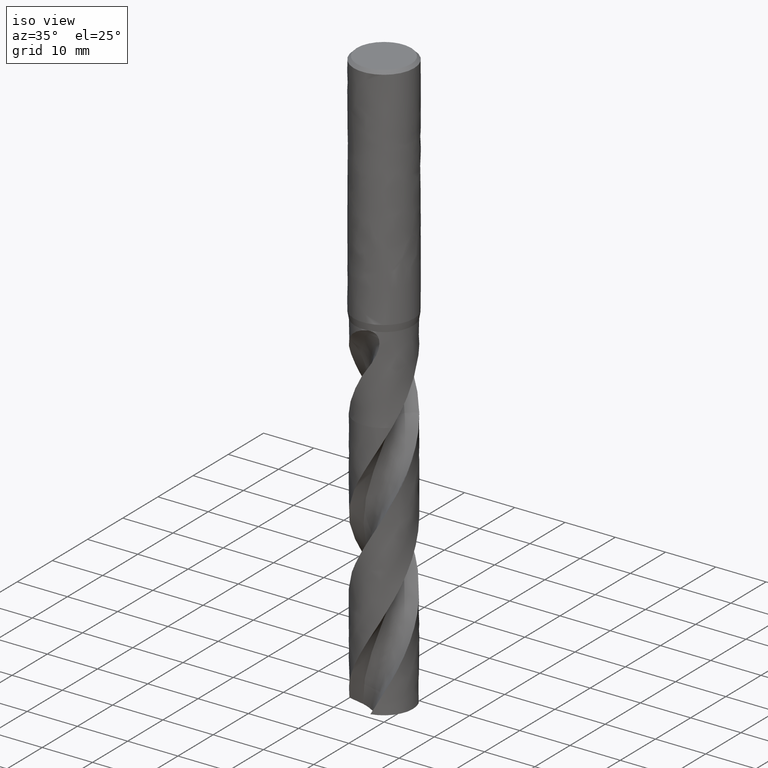
[diagram: clean part render]
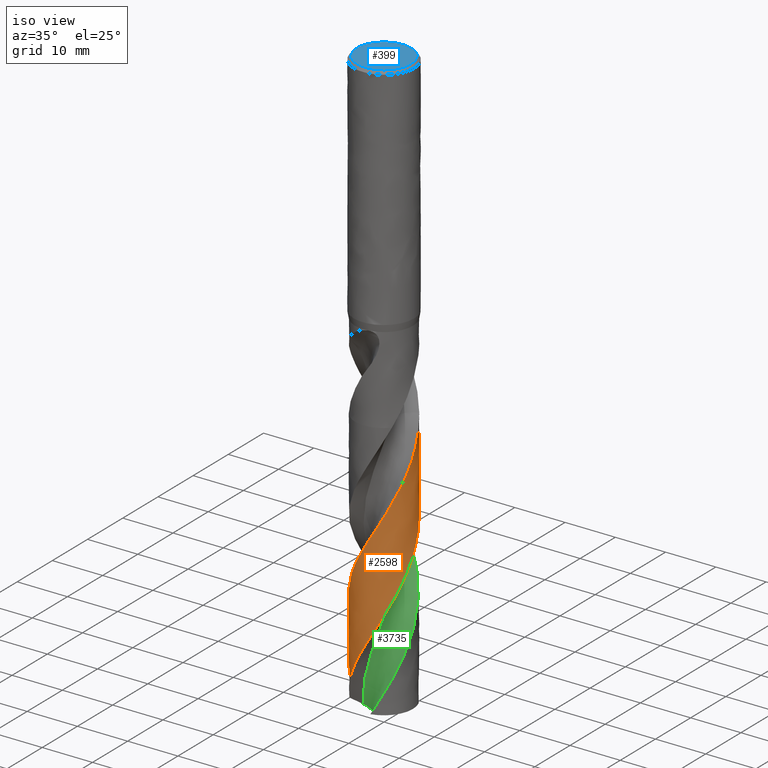
[diagram: same view with three faces highlighted in distinct colors, each labeled with its STEP entity id]
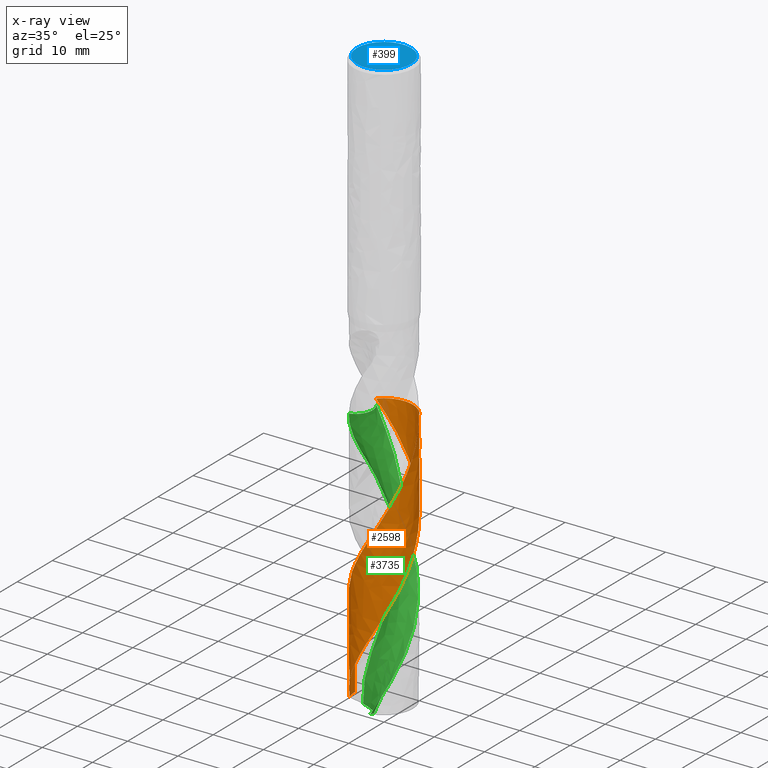
[diagram: x-ray of the same camera — body ghosted, the three highlighted faces saturated]
A machine part, iso view with three faces highlighted in distinct colors.
The next image is the same camera in x-ray (body ghosted, the three faces saturated) — at least one of them is partly hidden behind the body in this view.
Their STEP definitions:

[orange] entity #2598 — the highlighted face is a freeform B-spline surface patch.
#2000 = EDGE_CURVE('', #2001, #2003, #2005, .T.);
#2001 = VERTEX_POINT('', #2002);
#2002 = CARTESIAN_POINT('', (-4.27134242140595, 3.84943293474481, -64.25));
#2003 = VERTEX_POINT('', #2004);
#2004 = CARTESIAN_POINT('', (4.62249029031134, 3.41980752615954, -64.25));
#2005 = CIRCLE('', #2006, 5.75);
#2006 = AXIS2_PLACEMENT_3D('', #2007, #2008, #2009);
#2007 = CARTESIAN_POINT('', (2.40898915090061E-31, 3.93417784226087E-15, -64.25));
#2008 = DIRECTION('', (3.74939945665464E-33, 6.12323399573677E-17, -1.));
#2009 = DIRECTION('', (-1., 6.12323399573677E-17, 0.));
#2199 = EDGE_CURVE('', #2200, #2001, #2202, .T.);
#2200 = VERTEX_POINT('', #2201);
#2201 = CARTESIAN_POINT('', (-5.26135635836145, -2.31961834583396, -115.907171152969));
#2202 = B_SPLINE_CURVE_WITH_KNOTS('', 3, (#2203, #2204, #2205, #2206, #2207, #2208, #2209, #2210, #2211, #2212, #2213, #2214, #2215, #2216, #2217, #2218, #2219, #2220, #2221, #2222, #2223, #2224, #2225, #2226, #2227, #2228, #2229, #2230, #2231, #2232, #2233, #2234, #2235, #2236, #2237, #2238, #2239, #2240, #2241, #2242, #2243, #2244, #2245, #2246, #2247, #2248, #2249, #2250, #2251, #2252, #2253, #2254, #2255, #2256, #2257, #2258, #2259, #2260, #2261, #2262, #2263, #2264, #2265, #2266, #2267, #2268, #2269, #2270, #2271, #2272, #2273, #2274, #2275, #2276, #2277, #2278, #2279, #2280, #2281, #2282, #2283, #2284, #2285, #2286, #2287, #2288, #2289, #2290, #2291, #2292, #2293, #2294, #2295, #2296, #2297, #2298, #2299, #2300, #2301, #2302, #2303, #2304, #2305, #2306, #2307, #2308, #2309, #2310, #2311, #2312, #2313, #2314, #2315, #2316, #2317, #2318, #2319, #2320, #2321, #2322, #2323, #2324, #2325, #2326, #2327, #2328, #2329, #2330, #2331, #2332, #2333, #2334, #2335, #2336, #2337, #2338, #2339, #2340, #2341, #2342, #2343, #2344, #2345, #2346, #2347, #2348, #2349, #2350, #2351, #2352, #2353, #2354, #2355, #2356, #2357, #2358, #2359, #2360, #2361, #2362, #2363, #2364, #2365, #2366, #2367, #2368, #2369, #2370, #2371, #2372, #2373, #2374, #2375, #2376, #2377, #2378, #2379, #2380, #2381, #2382, #2383, #2384, #2385, #2386, #2387, #2388, #2389, #2390, #2391, #2392, #2393, #2394, #2395, #2396, #2397, #2398, #2399, #2400, #2401), .UNSPECIFIED., .F., .U., (4, 3, 3, 3, 3, 3, 3, 3, 3, 3, 3, 3, 3, 3, 3, 3, 3, 3, 3, 3, 3, 3, 3, 3, 3, 3, 3, 3, 3, 3, 3, 3, 3, 3, 3, 3, 3, 3, 3, 3, 3, 3, 3, 3, 3, 3, 3, 3, 3, 3, 3, 3, 3, 3, 3, 3, 3, 3, 3, 3, 3, 3, 3, 3, 3, 3, 4), (0., 0.998414479724243, 1.99659645598566, 2.99454959505258, 3.99227675722209, 4.98977972626542, 5.98705925085884, 6.98411508388555, 7.98094666830413, 8.97755268947959, 9.97393085938471, 10.9700778139643, 11.9659890210908, 12.9616591386549, 13.4046119723775, 13.4629950916536, 14.4626220986255, 15.4619818605631, 16.4610837318212, 17.4599356633324, 18.458544260042, 19.4569148333751, 20.4550514852051, 21.4529576306737, 22.4506359286902, 23.4480881072607, 24.4453149261284, 25.4423161335359, 26.4390906393307, 27.435636822129, 28.4319521918894, 29.4280332727842, 30.4238754839512, 31.4194730651083, 31.6164413630587, 31.6748227838148, 32.6744656250704, 33.673838739403, 34.6729515222966, 35.6718119551881, 36.67042668883, 37.6688011014597, 38.6669394625266, 39.6648452511906, 40.6625210692326, 41.6599686100853, 42.6571886210314, 43.6541808776715, 44.6509443866024, 45.6474774139095, 46.6437773655035, 47.6398406817852, 48.635662717946, 49.6312377126156, 49.7625682662065, 49.82094659498, 49.8793387001849, 50.8789880386061, 51.8783654414984, 52.8774803351429, 53.8763406892218, 54.8749532949484, 55.8733234669974, 56.8714553546491, 57.8693539970818, 58.8670161091653, 59.4941336467885), .UNSPECIFIED.);
#2203 = CARTESIAN_POINT('', (-5.26135635836145, -2.31961834583396, -115.907171152969));
#2204 = CARTESIAN_POINT('', (-5.19499713504465, -2.47013427969904, -115.61786083562));
#2205 = CARTESIAN_POINT('', (-5.12215416717777, -2.61784308502145, -115.328491218301));
#2206 = CARTESIAN_POINT('', (-5.04312508867052, -2.76213492429712, -115.039193236178));
#2207 = CARTESIAN_POINT('', (-4.96411441387715, -2.90639316194445, -114.749962623654));
#2208 = CARTESIAN_POINT('', (-4.87888593919967, -3.04729917764488, -114.4606725505));
#2209 = CARTESIAN_POINT('', (-4.78778802076556, -3.18427163857196, -114.171454315795));
#2210 = CARTESIAN_POINT('', (-4.69671098689215, -3.32121269801673, -113.882302385522));
#2211 = CARTESIAN_POINT('', (-4.59972739226941, -3.4542818106809, -113.593091139229));
#2212 = CARTESIAN_POINT('', (-4.49723457600089, -3.58292913248672, -113.303951367065));
#2213 = CARTESIAN_POINT('', (-4.39476496824561, -3.71154732334289, -113.014877067824));
#2214 = CARTESIAN_POINT('', (-4.28674278734925, -3.83580316939084, -112.725744056488));
#2215 = CARTESIAN_POINT('', (-4.17361230808771, -3.95518144991841, -112.436681899132));
#2216 = CARTESIAN_POINT('', (-4.06050724967946, -4.07453290568775, -112.147684695154));
#2217 = CARTESIAN_POINT('', (-3.94224437339595, -4.189063608864, -111.858629205161));
#2218 = CARTESIAN_POINT('', (-3.8193112082285, -4.29829755771981, -111.569644275695));
#2219 = CARTESIAN_POINT('', (-3.6964055805565, -4.40750703775662, -111.28072407995));
#2220 = CARTESIAN_POINT('', (-3.56877550656159, -4.51147216914094, -110.991745326284));
#2221 = CARTESIAN_POINT('', (-3.43694620910572, -4.60976146407965, -110.702837669436));
#2222 = CARTESIAN_POINT('', (-3.30514648119515, -4.70802871255513, -110.413994815088));
#2223 = CARTESIAN_POINT('', (-3.16909092017596, -4.80066636154309, -110.125092670704));
#2224 = CARTESIAN_POINT('', (-3.02933772961245, -4.88729095920699, -109.83626220189));
#2225 = CARTESIAN_POINT('', (-2.88961597104846, -4.97389607406481, -109.547496694164));
#2226 = CARTESIAN_POINT('', (-2.74613725925012, -5.05452864349765, -109.258671784042));
#2227 = CARTESIAN_POINT('', (-2.59949039122711, -5.12885461930029, -108.969918464394));
#2228 = CARTESIAN_POINT('', (-2.45287670648567, -5.20316377660679, -108.681230483901));
#2229 = CARTESIAN_POINT('', (-2.30303149537123, -5.27120198256391, -108.39248354019));
#2230 = CARTESIAN_POINT('', (-2.15057136138355, -5.33268626675121, -108.103807659944));
#2231 = CARTESIAN_POINT('', (-1.99814608393342, -5.39415649395715, -107.815197778863));
#2232 = CARTESIAN_POINT('', (-1.84303800233283, -5.44910359513386, -107.526529480144));
#2233 = CARTESIAN_POINT('', (-1.68588719547832, -5.49729791480527, -107.237931751545));
#2234 = CARTESIAN_POINT('', (-1.5287728563788, -5.54548105070565, -106.949400993721));
#2235 = CARTESIAN_POINT('', (-1.36954460205386, -5.58693666092133, -106.660811919677));
#2236 = CARTESIAN_POINT('', (-1.20885955871396, -5.62149077801488, -106.372293535193));
#2237 = CARTESIAN_POINT('', (-1.0482125429859, -5.65603671755484, -106.083843431271));
#2238 = CARTESIAN_POINT('', (-0.886036929015077, -5.68370008238491, -105.795334429359));
#2239 = CARTESIAN_POINT('', (-0.722999940138083, -5.70436421405238, -105.506896772363));
#2240 = CARTESIAN_POINT('', (-0.560002419153434, -5.72502334335977, -105.218528940174));
#2241 = CARTESIAN_POINT('', (-0.396072340438951, -5.73869573536417, -104.930101763175));
#2242 = CARTESIAN_POINT('', (-0.231883033956536, -5.74532246776152, -104.641746156039));
#2243 = CARTESIAN_POINT('', (-0.158838641752371, -5.74827056255914, -104.513462770761));
#2244 = CARTESIAN_POINT('', (-0.0857325556488287, -5.74982562374547, -104.385174925186));
#2245 = CARTESIAN_POINT('', (-0.0126247666488689, -5.7499861404413, -104.256893878824));
#2246 = CARTESIAN_POINT('', (-0.00298884056317718, -5.7500072972433, -104.2399858763));
#2247 = CARTESIAN_POINT('', (0.0066471790376687, -5.7500042319831, -104.223077879411));
#2248 = CARTESIAN_POINT('', (0.0162831568373254, -5.74997694419755, -104.206169915143));
#2249 = CARTESIAN_POINT('', (0.181268922698223, -5.74950972682824, -103.916674288231));
#2250 = CARTESIAN_POINT('', (0.346282890648198, -5.74193486125476, -103.627119179157));
#2251 = CARTESIAN_POINT('', (0.510639378247323, -5.72728098013217, -103.337636108872));
#2252 = CARTESIAN_POINT('', (0.674951926002038, -5.71263101664779, -103.048230430366));
#2253 = CARTESIAN_POINT('', (0.838680559321947, -5.6908993408074, -102.75876470623));
#2254 = CARTESIAN_POINT('', (1.00114654911802, -5.6621732212278, -102.469371386085));
#2255 = CARTESIAN_POINT('', (1.16357061360742, -5.63345451459275, -102.180052745593));
#2256 = CARTESIAN_POINT('', (1.32480448501073, -5.59773226237385, -101.890674135865));
#2257 = CARTESIAN_POINT('', (1.484179239903, -5.55515184165482, -101.601367703433));
#2258 = CARTESIAN_POINT('', (1.64351412490105, -5.51258207304234, -101.312133645178));
#2259 = CARTESIAN_POINT('', (1.80106235182901, -5.46313840473684, -101.022840079911));
#2260 = CARTESIAN_POINT('', (1.95616861996202, -5.40702361103369, -100.733618181112));
#2261 = CARTESIAN_POINT('', (2.11123710196099, -5.35092248770726, -100.444466740957));
#2262 = CARTESIAN_POINT('', (2.26393593753234, -5.28812771399915, -100.155256232916));
#2263 = CARTESIAN_POINT('', (2.41362862999289, -5.21889804810159, -99.8661170334373));
#2264 = CARTESIAN_POINT('', (2.56328564244805, -5.14968488344275, -99.5770467517399));
#2265 = CARTESIAN_POINT('', (2.71000700173067, -5.07400797599323, -99.2879173226473));
#2266 = CARTESIAN_POINT('', (2.85318160475269, -4.99217935678405, -98.9988595058917));
#2267 = CARTESIAN_POINT('', (2.99632266149517, -4.910369910289, -98.7098694163315));
#2268 = CARTESIAN_POINT('', (3.13598329285229, -4.82237473755611, -98.4208195896925));
#2269 = CARTESIAN_POINT('', (3.27158335534782, -4.72855605328001, -98.1318419139854));
#2270 = CARTESIAN_POINT('', (3.40715210281553, -4.63475903517909, -97.8429309738224));
#2271 = CARTESIAN_POINT('', (3.53872224006059, -4.53509964003096, -97.5539600654849));
#2272 = CARTESIAN_POINT('', (3.66574750329331, -4.42998817629334, -97.2650613636325));
#2273 = CARTESIAN_POINT('', (3.79274376341516, -4.32490071218666, -96.97622862473));
#2274 = CARTESIAN_POINT('', (3.91525375434385, -4.21431684596789, -96.6873362013117));
#2275 = CARTESIAN_POINT('', (4.03276780454588, -4.09869294222173, -96.3985156044928));
#2276 = CARTESIAN_POINT('', (4.15025522069966, -3.98309524413034, -96.1097604676057));
#2277 = CARTESIAN_POINT('', (4.26280227363194, -3.86240726952515, -95.8209461149368));
#2278 = CARTESIAN_POINT('', (4.36993942567419, -3.73712849871908, -95.5322031322085));
#2279 = CARTESIAN_POINT('', (4.47705237164695, -3.6118780328154, -95.2435253867259));
#2280 = CARTESIAN_POINT('', (4.57880722676732, -3.48198109500134, -94.9547886440624));
#2281 = CARTESIAN_POINT('', (4.67477889266686, -3.34797585186578, -94.6661232022484));
#2282 = CARTESIAN_POINT('', (4.77072884604596, -3.21400092592387, -94.3775230677754));
#2283 = CARTESIAN_POINT('', (4.86094216386709, -3.07585827648708, -94.0888635670653));
#2284 = CARTESIAN_POINT('', (4.94504247861889, -2.93411909858049, -93.8002758776926));
#2285 = CARTESIAN_POINT('', (5.02912367034773, -2.79241214982262, -93.5117538083955));
#2286 = CARTESIAN_POINT('', (5.1071322391051, -2.64704701187469, -93.223171894539));
#2287 = CARTESIAN_POINT('', (5.17874305618658, -2.49862369275554, -92.9346621029914));
#2288 = CARTESIAN_POINT('', (5.25033746996294, -2.35023437175411, -92.6462183980258));
#2289 = CARTESIAN_POINT('', (5.31556883473747, -2.19872238433029, -92.3577149159905));
#2290 = CARTESIAN_POINT('', (5.37416468325023, -2.04471366144653, -92.0692833618597));
#2291 = CARTESIAN_POINT('', (5.4327469602035, -1.89074060898308, -91.7809186122226));
#2292 = CARTESIAN_POINT('', (5.48472311439124, -1.73420267759043, -91.4924944827215));
#2293 = CARTESIAN_POINT('', (5.52987505303048, -1.5757480439053, -91.204141843767));
#2294 = CARTESIAN_POINT('', (5.57501637395087, -1.4173306716712, -90.9158570124713));
#2295 = CARTESIAN_POINT('', (5.61335734092214, -1.25692489534348, -90.6275131693843));
#2296 = CARTESIAN_POINT('', (5.64473608818179, -1.09519609877808, -90.3392405254912));
#2297 = CARTESIAN_POINT('', (5.67610731051907, -0.93350608631807, -90.0510370121231));
#2298 = CARTESIAN_POINT('', (5.7005341002247, -0.770419316203697, -89.7627743886341));
#2299 = CARTESIAN_POINT('', (5.71791240596873, -0.606611669579643, -89.474583257204));
#2300 = CARTESIAN_POINT('', (5.73528644270804, -0.442844262529469, -89.186462920322));
#2301 = CARTESIAN_POINT('', (5.74562334296849, -0.278282440618884, -88.8982829732978));
#2302 = CARTESIAN_POINT('', (5.74887758922533, -0.113606619990096, -88.6101749496833));
#2303 = CARTESIAN_POINT('', (5.74952140692683, -0.081027275969242, -88.5531758688184));
#2304 = CARTESIAN_POINT('', (5.74988828391299, -0.0484417536795222, -88.4961765180978));
#2305 = CARTESIAN_POINT('', (5.74997813973996, -0.0158553622659004, -88.4391779005877));
#2306 = CARTESIAN_POINT('', (5.75000477301494, -0.00619675299813195, -88.4222835053677));
#2307 = CARTESIAN_POINT('', (5.75000707004489, 0.00346196562732153, -88.4053891167743));
#2308 = CARTESIAN_POINT('', (5.74998503027653, 0.0131206553133768, -88.3884947609132));
#2309 = CARTESIAN_POINT('', (5.74960765171362, 0.178502721654577, -88.0992191373412));
#2310 = CARTESIAN_POINT('', (5.74208845467715, 0.343916764838995, -87.8098831822219));
#2311 = CARTESIAN_POINT('', (5.72745600443943, 0.508672504870602, -87.5206199902989));
#2312 = CARTESIAN_POINT('', (5.71282750237761, 0.673383789965933, -87.2314348483227));
#2313 = CARTESIAN_POINT('', (5.69108302682094, 0.837511128485139, -86.9421891626055));
#2314 = CARTESIAN_POINT('', (5.66231045120767, 1.00037010858215, -86.6530163105871));
#2315 = CARTESIAN_POINT('', (5.63354537069898, 1.16318666477157, -86.3639187865755));
#2316 = CARTESIAN_POINT('', (5.59774287263589, 1.32480883480664, -86.0747609286517));
#2317 = CARTESIAN_POINT('', (5.55504962372451, 1.4845617797715, -85.7856756085676));
#2318 = CARTESIAN_POINT('', (5.51236715802162, 1.64427437528164, -85.4966633039451));
#2319 = CARTESIAN_POINT('', (5.46277787116879, 1.80219169057783, -85.2075910552526));
#2320 = CARTESIAN_POINT('', (5.40648635105601, 1.95765301722372, -84.9185909532679));
#2321 = CARTESIAN_POINT('', (5.35020867750657, 2.11307610356092, -84.6296619394011));
#2322 = CARTESIAN_POINT('', (5.28720598022053, 2.26611640290159, -84.3406732031456));
#2323 = CARTESIAN_POINT('', (5.21773909839101, 2.41613300567701, -84.0517565048027));
#2324 = CARTESIAN_POINT('', (5.14828893407104, 2.5661135062995, -83.7629093355295));
#2325 = CARTESIAN_POINT('', (5.07234568277455, 2.71314097313869, -83.474002187889));
#2326 = CARTESIAN_POINT('', (4.99022376132018, 2.85660056920031, -83.1851674645563));
#2327 = CARTESIAN_POINT('', (4.90812125643704, 3.00002624626178, -82.8964010321243));
#2328 = CARTESIAN_POINT('', (4.81980586463479, 3.13995068281805, -82.6075742169657));
#2329 = CARTESIAN_POINT('', (4.72564304067073, 3.27578965322261, -82.3188201081626));
#2330 = CARTESIAN_POINT('', (4.63150215722623, 3.41159697230808, -82.0301332808502));
#2331 = CARTESIAN_POINT('', (4.53147423945327, 3.54338177518337, -81.7413860826177));
#2332 = CARTESIAN_POINT('', (4.42597370952589, 3.6705935109442, -81.4527114723966));
#2333 = CARTESIAN_POINT('', (4.32049749253743, 3.79777593034838, -81.1641033881746));
#2334 = CARTESIAN_POINT('', (4.2095033038589, 3.92044507185083, -80.8754352354375));
#2335 = CARTESIAN_POINT('', (4.09345204537419, 4.03808746218082, -80.5868393244554));
#2336 = CARTESIAN_POINT('', (3.97742734045992, 4.1557029348751, -80.2983094468103));
#2337 = CARTESIAN_POINT('', (3.85629442705369, 4.26834809691167, -80.0097198235671));
#2338 = CARTESIAN_POINT('', (3.73055729336889, 4.37555051175189, -79.7212021684286));
#2339 = CARTESIAN_POINT('', (3.60484884185244, 4.48272847241839, -79.4327503276737));
#2340 = CARTESIAN_POINT('', (3.4744800843351, 4.5845157885636, -79.1442387198362));
#2341 = CARTESIAN_POINT('', (3.33999333342826, 4.68048550181013, -78.8557992592209));
#2342 = CARTESIAN_POINT('', (3.20553729784631, 4.77643329660818, -78.5674256750707));
#2343 = CARTESIAN_POINT('', (3.06690376971576, 4.86660999019681, -78.2789919365138));
#2344 = CARTESIAN_POINT('', (2.92466851968769, 4.95063774174074, -77.990630705613));
#2345 = CARTESIAN_POINT('', (2.78246590380234, 5.0346462141423, -77.7023356356784));
#2346 = CARTESIAN_POINT('', (2.63659912053646, 5.11254644409814, -77.4139802407501));
#2347 = CARTESIAN_POINT('', (2.48767378000699, 5.18401187925585, -77.1256974121349));
#2348 = CARTESIAN_POINT('', (2.33878287548367, 5.25546078946116, -76.8374812431575));
#2349 = CARTESIAN_POINT('', (2.18676756092678, 5.32051013511226, -76.5492049222549));
#2350 = CARTESIAN_POINT('', (2.03225976084006, 5.37888652645419, -76.2610009234528));
#2351 = CARTESIAN_POINT('', (1.87778809805604, 5.43724926434094, -75.9728643317015));
#2352 = CARTESIAN_POINT('', (1.72075444172416, 5.4889688347522, -75.6846679125423));
#2353 = CARTESIAN_POINT('', (1.56181273855596, 5.53382697323332, -75.3965434920414));
#2354 = CARTESIAN_POINT('', (1.40290878628749, 5.57867445727288, -75.1084875051606));
#2355 = CARTESIAN_POINT('', (1.24202422325325, 5.61668449036365, -74.8203718593115));
#2356 = CARTESIAN_POINT('', (1.07982948912415, 5.64769583763313, -74.5323281490687));
#2357 = CARTESIAN_POINT('', (0.91767404402862, 5.67869967290865, -74.2443542127249));
#2358 = CARTESIAN_POINT('', (0.754134437763865, 5.70272250752797, -73.9563203862808));
#2359 = CARTESIAN_POINT('', (0.589891274091623, 5.71966155333968, -73.6683588157489));
#2360 = CARTESIAN_POINT('', (0.42568885552705, 5.73659639694759, -73.3804686821337));
#2361 = CARTESIAN_POINT('', (0.260708798224374, 5.74645866665594, -73.0925183551604));
#2362 = CARTESIAN_POINT('', (0.0956368597368394, 5.74920460507909, -72.8046404866647));
#2363 = CARTESIAN_POINT('', (0.0738615146548859, 5.74956683355527, -72.7666652863649));
#2364 = CARTESIAN_POINT('', (0.052083837592155, 5.74980535208476, -72.7286900416555));
#2365 = CARTESIAN_POINT('', (0.0303054119077312, 5.7499201370114, -72.6907150538365));
#2366 = CARTESIAN_POINT('', (0.0206245869967566, 5.74997116056991, -72.6738346230194));
#2367 = CARTESIAN_POINT('', (0.0109435893449332, 5.74999773567117, -72.6569541996631));
#2368 = CARTESIAN_POINT('', (0.00126255805734198, 5.74999986138671, -72.6400738102238));
#2369 = CARTESIAN_POINT('', (-0.00842075781197139, 5.75000198760389, -72.6231894372596));
#2370 = CARTESIAN_POINT('', (-0.0181041226236053, 5.7499796528979, -72.6063050715648));
#2371 = CARTESIAN_POINT('', (-0.0277873971703209, 5.74993285704786, -72.5894207396165));
#2372 = CARTESIAN_POINT('', (-0.193561159914692, 5.74913173093033, -72.3003677725656));
#2373 = CARTESIAN_POINT('', (-0.35934883199088, 5.74115468826081, -72.0112538344628));
#2374 = CARTESIAN_POINT('', (-0.524455021110772, 5.72603238995662, -71.7222132449486));
#2375 = CARTESIAN_POINT('', (-0.68951629624217, 5.71091420538515, -71.4332512834117));
#2376 = CARTESIAN_POINT('', (-0.853971593958168, 5.68864776592014, -71.1442283498628));
#2377 = CARTESIAN_POINT('', (-1.017130982996, 5.65932368427799, -70.8552786807635));
#2378 = CARTESIAN_POINT('', (-1.18024751450239, 5.6300073052741, -70.566404910879));
#2379 = CARTESIAN_POINT('', (-1.3421435584746, 5.59362353089312, -70.2774704177592));
#2380 = CARTESIAN_POINT('', (-1.5021390150824, 5.55032236715737, -69.9886089095242));
#2381 = CARTESIAN_POINT('', (-1.66209371043811, 5.50703223504519, -69.6998209931086));
#2382 = CARTESIAN_POINT('', (-1.82022291297292, 5.45680814788071, -69.4109726119212));
#2383 = CARTESIAN_POINT('', (-1.97586143875995, 5.39985847729563, -69.1221969462508));
#2384 = CARTESIAN_POINT('', (-2.13146136136471, 5.34292293199543, -68.8334929059032));
#2385 = CARTESIAN_POINT('', (-2.28464435822746, 5.27923861630113, -68.5447284099635));
#2386 = CARTESIAN_POINT('', (-2.43476634652502, 5.20907024696627, -68.2560368726426));
#2387 = CARTESIAN_POINT('', (-2.58485188963303, 5.13891891244124, -67.9674154211094));
#2388 = CARTESIAN_POINT('', (-2.73194716372398, 5.0622543049404, -67.6787333541141));
#2389 = CARTESIAN_POINT('', (-2.87543372727482, 4.97939563401528, -67.3901241564026));
#2390 = CARTESIAN_POINT('', (-3.01888604440055, 4.89655673925037, -67.1015838420278));
#2391 = CARTESIAN_POINT('', (-3.15879651990065, 4.80748921151391, -66.8129821332764));
#2392 = CARTESIAN_POINT('', (-3.29457922009732, 4.71256275952936, -66.5244541626478));
#2393 = CARTESIAN_POINT('', (-3.43033019035325, 4.61765849012545, -66.235993615744));
#2394 = CARTESIAN_POINT('', (-3.56201836841143, 4.51685376203364, -65.9474736431743));
#2395 = CARTESIAN_POINT('', (-3.68908773011981, 4.41057045284162, -65.6590263015351));
#2396 = CARTESIAN_POINT('', (-3.8161269727768, 4.30431233581558, -65.3706473301165));
#2397 = CARTESIAN_POINT('', (-3.93860571256672, 4.19253135235732, -65.082205628934));
#2398 = CARTESIAN_POINT('', (-4.05600872294437, 4.07569543015658, -64.793834187555));
#2399 = CARTESIAN_POINT('', (-4.12980674121714, 4.00225387619855, -64.6125676183949));
#2400 = CARTESIAN_POINT('', (-4.20163108710808, 3.92678484202231, -64.4312578019143));
#2401 = CARTESIAN_POINT('', (-4.27134242140595, 3.84943293474481, -64.25));
#2598 = ADVANCED_FACE('', (#2599), #2777, .T.);
#2599 = FACE_OUTER_BOUND('', #2600, .T.);
#2600 = EDGE_LOOP('', (#2601, #2602, #2620, #2761, #2769, #2776));
#2601 = ORIENTED_EDGE('', *, *, #2000, .T.);
#2602 = ORIENTED_EDGE('', *, *, #2603, .T.);
#2603 = EDGE_CURVE('', #2003, #2604, #2606, .T.);
#2604 = VERTEX_POINT('', #2605);
#2605 = CARTESIAN_POINT('', (5.37145640144056, 2.05181776174771, -66.9639507613902));
#2606 = B_SPLINE_CURVE_WITH_KNOTS('', 3, (#2607, #2608, #2609, #2610, #2611, #2612, #2613, #2614, #2615, #2616, #2617, #2618, #2619), .UNSPECIFIED., .F., .U., (4, 3, 3, 3, 4), (6.91086626671247, 7.46404300600305, 8.12881611196244, 9.12556429441253, 10.0432202319448), .UNSPECIFIED.);
#2607 = CARTESIAN_POINT('', (4.62249029031134, 3.41980752615954, -64.25));
#2608 = CARTESIAN_POINT('', (4.67727344330517, 3.34575815617321, -64.4097372764769));
#2609 = CARTESIAN_POINT('', (4.73028411789175, 3.2703813222912, -64.5695193197045));
#2610 = CARTESIAN_POINT('', (4.78143867503899, 3.19379777018543, -64.7292649655716));
#2611 = CARTESIAN_POINT('', (4.84291301302789, 3.10176446114924, -64.9212372623511));
#2612 = CARTESIAN_POINT('', (4.9017326689159, 3.00795024890709, -65.1132324467672));
#2613 = CARTESIAN_POINT('', (4.9577899852561, 2.91252784743672, -65.305208303365));
#2614 = CARTESIAN_POINT('', (5.0418412618108, 2.7694533091048, -65.5930532604229));
#2615 = CARTESIAN_POINT('', (5.11970898220344, 2.62270992975478, -65.880969675627));
#2616 = CARTESIAN_POINT('', (5.19106420980844, 2.4729238503532, -66.1688276646146));
#2617 = CARTESIAN_POINT('', (5.25675738029885, 2.33502333792421, -66.4338440422831));
#2618 = CARTESIAN_POINT('', (5.31695868801541, 2.19448739698473, -66.6989201993362));
#2619 = CARTESIAN_POINT('', (5.37145640144054, 2.05181776174776, -66.9639507613901));
#2620 = ORIENTED_EDGE('', *, *, #2621, .T.);
#2621 = EDGE_CURVE('', #2604, #2622, #2624, .T.);
#2622 = VERTEX_POINT('', #2623);
#2623 = CARTESIAN_POINT('', (-5.75, 6.60825589514779E-15, -102.171008730823));
#2624 = B_SPLINE_CURVE_WITH_KNOTS('', 3, (#2625, #2626, #2627, #2628, #2629, #2630, #2631, #2632, #2633, #2634, #2635, #2636, #2637, #2638, #2639, #2640, #2641, #2642, #2643, #2644, #2645, #2646, #2647, #2648, #2649, #2650, #2651, #2652, #2653, #2654, #2655, #2656, #2657, #2658, #2659, #2660, #2661, #2662, #2663, #2664, #2665, #2666, #2667, #2668, #2669, #2670, #2671, #2672, #2673, #2674, #2675, #2676, #2677, #2678, #2679, #2680, #2681, #2682, #2683, #2684, #2685, #2686, #2687, #2688, #2689, #2690, #2691, #2692, #2693, #2694, #2695, #2696, #2697, #2698, #2699, #2700, #2701, #2702, #2703, #2704, #2705, #2706, #2707, #2708, #2709, #2710, #2711, #2712, #2713, #2714, #2715, #2716, #2717, #2718, #2719, #2720, #2721, #2722, #2723, #2724, #2725, #2726, #2727, #2728, #2729, #2730, #2731, #2732, #2733, #2734, #2735, #2736, #2737, #2738, #2739, #2740, #2741, #2742, #2743, #2744, #2745, #2746, #2747, #2748, #2749, #2750, #2751, #2752, #2753, #2754, #2755, #2756, #2757, #2758, #2759, #2760), .UNSPECIFIED., .F., .U., (4, 3, 3, 3, 3, 3, 3, 3, 3, 3, 3, 3, 3, 3, 3, 3, 3, 3, 3, 3, 3, 3, 3, 3, 3, 3, 3, 3, 3, 3, 3, 3, 3, 3, 3, 3, 3, 3, 3, 3, 3, 3, 3, 3, 3, 4), (0., 0.996290693612966, 1.99234242897431, 2.98815174760374, 3.98371359275988, 4.18068046667311, 4.23906422902546, 5.23873308772054, 6.2381253336303, 7.23725080193282, 8.23611832368691, 9.23473549584937, 10.2331085985714, 11.2312426396979, 12.2291413983516, 13.2268078360179, 14.2242443525541, 15.2214524081034, 16.2184324803827, 17.2151840136857, 18.2117054881437, 19.2079948564824, 20.2040492119914, 21.1998646109533, 22.1954359472581, 22.3267664777135, 22.3851509187371, 23.3847954548282, 24.3841676679617, 25.3832775368181, 26.3821337324959, 27.3807435838694, 28.3791131484746, 29.3772472639054, 30.3751497542976, 31.3728237622027, 32.3702715621234, 33.3674945257955, 34.3644930848318, 35.3612667167757, 36.3578141856889, 37.3541335089025, 38.3502218201216, 39.3460752657665, 40.3416888892994, 40.5685641070032), .UNSPECIFIED.);
#2625 = CARTESIAN_POINT('', (5.37145640144056, 2.05181776174771, -66.9639507613902));
#2626 = CARTESIAN_POINT('', (5.43062407255557, 1.89692263816795, -67.2516920287843));
#2627 = CARTESIAN_POINT('', (5.48309288254493, 1.73944630219964, -67.5395104591105));
#2628 = CARTESIAN_POINT('', (5.52864623467337, 1.58005405345263, -67.8272731264681));
#2629 = CARTESIAN_POINT('', (5.574188660925, 1.4207000346051, -68.1149667745482));
#2630 = CARTESIAN_POINT('', (5.612840332615, 1.25935642681836, -68.4027382440414));
#2631 = CARTESIAN_POINT('', (5.64444368839973, 1.09670207827131, -68.690453801249));
#2632 = CARTESIAN_POINT('', (5.67603935263397, 0.934087316157577, -68.9780993349199));
#2633 = CARTESIAN_POINT('', (5.70060470929932, 0.770087811404723, -69.2658231431941));
#2634 = CARTESIAN_POINT('', (5.7180418376346, 0.605390405491109, -69.553490504807));
#2635 = CARTESIAN_POINT('', (5.73547463258333, 0.440733929340171, -69.8410863767885));
#2636 = CARTESIAN_POINT('', (5.74579061819925, 0.275305624548521, -70.1287604768371));
#2637 = CARTESIAN_POINT('', (5.7489516057011, 0.109797246356518, -70.4163783274049));
#2638 = CARTESIAN_POINT('', (5.74957699108499, 0.077052251138452, -70.4732820639067));
#2639 = CARTESIAN_POINT('', (5.74992259369784, 0.0443023313457297, -70.5301867292866));
#2640 = CARTESIAN_POINT('', (5.74998839396017, 0.0115528924205515, -70.5870913070197));
#2641 = CARTESIAN_POINT('', (5.75000789808695, 0.00184549634224988, -70.6039586272808));
#2642 = CARTESIAN_POINT('', (5.75000281930615, -0.00786189141477504, -70.6208259986697));
#2643 = CARTESIAN_POINT('', (5.74997315869063, -0.0175691302386992, -70.6376933946302));
#2644 = CARTESIAN_POINT('', (5.74946529841444, -0.183780144486588, -70.9265033272137));
#2645 = CARTESIAN_POINT('', (5.74174383862465, -0.349987529854316, -71.2153923839975));
#2646 = CARTESIAN_POINT('', (5.72684627615254, -0.515491735450458, -71.5042244405644));
#2647 = CARTESIAN_POINT('', (5.71195283590173, -0.680950145302446, -71.7929765760265));
#2648 = CARTESIAN_POINT('', (5.68988039474545, -0.84578160063973, -72.0818072366867));
#2649 = CARTESIAN_POINT('', (5.66072703490174, -1.00929155170127, -72.370581669767));
#2650 = CARTESIAN_POINT('', (5.63158145725126, -1.17275785544247, -72.6592790174461));
#2651 = CARTESIAN_POINT('', (5.59534495398357, -1.33498045170116, -72.9480541045855));
#2652 = CARTESIAN_POINT('', (5.55217547795649, -1.49527504559531, -73.2367735102724));
#2653 = CARTESIAN_POINT('', (5.50901714709355, -1.65552825586094, -73.525418376598));
#2654 = CARTESIAN_POINT('', (5.45890898133823, -1.81393049840992, -73.8141409787613));
#2655 = CARTESIAN_POINT('', (5.40206694599675, -1.96981540022663, -74.1028076934744));
#2656 = CARTESIAN_POINT('', (5.34523915716947, -2.12566123207594, -74.3914020586592));
#2657 = CARTESIAN_POINT('', (5.28165453757132, -2.27906342116387, -74.6800746105641));
#2658 = CARTESIAN_POINT('', (5.2115846791623, -2.42937957757141, -74.9686907857339));
#2659 = CARTESIAN_POINT('', (5.14153194634616, -2.57965899559591, -75.2572364209706));
#2660 = CARTESIAN_POINT('', (5.06496544387333, -2.72692201881568, -75.545860568653));
#2661 = CARTESIAN_POINT('', (4.98221019235865, -2.87055423205304, -75.8344281138452));
#2662 = CARTESIAN_POINT('', (4.89947475668477, -3.01415205239062, -76.1229265612046));
#2663 = CARTESIAN_POINT('', (4.81051623178953, -3.15418552212517, -76.4115032563847));
#2664 = CARTESIAN_POINT('', (4.7157114788321, -3.29007070568569, -76.7000238209135));
#2665 = CARTESIAN_POINT('', (4.62092907347106, -3.42592385807538, -76.9884763747052));
#2666 = CARTESIAN_POINT('', (4.52025938414818, -3.55769337264134, -77.2770063335419));
#2667 = CARTESIAN_POINT('', (4.41412920641412, -3.68482880865337, -77.5654809865937));
#2668 = CARTESIAN_POINT('', (4.30802373686562, -3.81193464624192, -77.8538884798103));
#2669 = CARTESIAN_POINT('', (4.19641022991533, -3.93446856292666, -78.1423729519511));
#2670 = CARTESIAN_POINT('', (4.07976107021115, -4.05191925018127, -78.4308022437444));
#2671 = CARTESIAN_POINT('', (3.96313879334638, -4.16934286987729, -78.7191650644344));
#2672 = CARTESIAN_POINT('', (3.8414287871419, -4.28174046709615, -79.0076052208378));
#2673 = CARTESIAN_POINT('', (3.71514371254649, -4.38864525738026, -79.2959897280997));
#2674 = CARTESIAN_POINT('', (3.58888756331353, -4.49552556132015, -79.5843081814244));
#2675 = CARTESIAN_POINT('', (3.45800116330269, -4.59696415418249, -79.8727044551123));
#2676 = CARTESIAN_POINT('', (3.3230331853458, -4.69254200291169, -80.1610446446029));
#2677 = CARTESIAN_POINT('', (3.18809606397979, -4.78809800048317, -80.4493189133071));
#2678 = CARTESIAN_POINT('', (3.04901905979917, -4.8778385697034, -80.7376710642636));
#2679 = CARTESIAN_POINT('', (2.90638389147178, -4.96139422696819, -81.0259672492654));
#2680 = CARTESIAN_POINT('', (2.76378141958059, -5.04493073066624, -81.3141973477758));
#2681 = CARTESIAN_POINT('', (2.61755795906207, -5.12232285217308, -81.6025046335593));
#2682 = CARTESIAN_POINT('', (2.46832615425435, -5.19325196733452, -81.8907568342155));
#2683 = CARTESIAN_POINT('', (2.31912879343344, -5.26416471144484, -82.1789425037793));
#2684 = CARTESIAN_POINT('', (2.16685482516144, -5.32865049199821, -82.4672045639936));
#2685 = CARTESIAN_POINT('', (2.01214287575848, -5.38644419329992, -82.7554120425519));
#2686 = CARTESIAN_POINT('', (1.85746696129416, -5.44422443350512, -83.0435523928834));
#2687 = CARTESIAN_POINT('', (1.70028182845063, -5.49534279582407, -83.3317692525625));
#2688 = CARTESIAN_POINT('', (1.54124453276376, -5.53959071504618, -83.6199312146392));
#2689 = CARTESIAN_POINT('', (1.38224475208614, -5.58382819670966, -83.9080252027313));
#2690 = CARTESIAN_POINT('', (1.22132117244526, -5.62121873203231, -84.1961962399419));
#2691 = CARTESIAN_POINT('', (1.05914317717429, -5.65161178162878, -84.484311826817));
#2692 = CARTESIAN_POINT('', (0.897004088910309, -5.68199753983784, -84.7723582938641));
#2693 = CARTESIAN_POINT('', (0.73353919481501, -5.7054027117698, -85.0604821355508));
#2694 = CARTESIAN_POINT('', (0.569426114731878, -5.72173521755959, -85.3485503420984));
#2695 = CARTESIAN_POINT('', (0.405353256836959, -5.73806372044405, -85.6365479465123));
#2696 = CARTESIAN_POINT('', (0.240559742438755, -5.74733023762935, -85.924622515183));
#2697 = CARTESIAN_POINT('', (0.0757291124726183, -5.7495012915491, -86.2126421200751));
#2698 = CARTESIAN_POINT('', (0.0539855233601624, -5.74978768555477, -86.2506361503497));
#2699 = CARTESIAN_POINT('', (0.0322405261101131, -5.749950729121, -86.2886305047878));
#2700 = CARTESIAN_POINT('', (0.0104957044842612, -5.74999042087788, -86.3266248883536));
#2701 = CARTESIAN_POINT('', (0.000828803335060279, -5.75000806628775, -86.3435157121311));
#2702 = CARTESIAN_POINT('', (-0.00883808766814241, -5.7500013334841, -86.3604065847739));
#2703 = CARTESIAN_POINT('', (-0.0185048293528788, -5.74997022351339, -86.3772974803819));
#2704 = CARTESIAN_POINT('', (-0.184016485155769, -5.7494375659817, -86.6664993843177));
#2705 = CARTESIAN_POINT('', (-0.349523326200278, -5.74175190964452, -86.9557789698534));
#2706 = CARTESIAN_POINT('', (-0.514333710124196, -5.72695039568441, -87.2450030796819));
#2707 = CARTESIAN_POINT('', (-0.679099196437444, -5.71215291394967, -87.5341483991383));
#2708 = CARTESIAN_POINT('', (-0.843245016640779, -5.69023652847205, -87.8233704456083));
#2709 = CARTESIAN_POINT('', (-1.00608380595139, -5.66129802919835, -88.112537765105));
#2710 = CARTESIAN_POINT('', (-1.16887984860172, -5.63236712654338, -88.4016291755556));
#2711 = CARTESIAN_POINT('', (-1.33044608660098, -5.59640421960092, -88.6907971797635));
#2712 = CARTESIAN_POINT('', (-1.49010743454665, -5.55356460604449, -88.9799103301214));
#2713 = CARTESIAN_POINT('', (-1.64972824460668, -5.5107358694309, -89.2689500748869));
#2714 = CARTESIAN_POINT('', (-1.80751864659087, -5.4610142753345, -89.5580669278156));
#2715 = CARTESIAN_POINT('', (-1.96282260791177, -5.40461167984074, -89.8471283478596));
#2716 = CARTESIAN_POINT('', (-2.1180882671763, -5.34822299471587, -90.1361184777271));
#2717 = CARTESIAN_POINT('', (-2.27093802667779, -5.28513150260378, -90.4251862018389));
#2718 = CARTESIAN_POINT('', (-2.42073922992766, -5.21560366407278, -90.7141981100571));
#2719 = CARTESIAN_POINT('', (-2.5705043878221, -5.14609255541843, -91.0031404758635));
#2720 = CARTESIAN_POINT('', (-2.71728844422663, -5.07011757078271, -91.2921603182586));
#2721 = CARTESIAN_POINT('', (-2.86048452222135, -4.98799842603545, -91.5811247050197));
#2722 = CARTESIAN_POINT('', (-3.00364682975718, -4.90589864774879, -91.8700209442444));
#2723 = CARTESIAN_POINT('', (-3.1432874084879, -4.81762050211693, -92.1589937547953));
#2724 = CARTESIAN_POINT('', (-3.27882745678946, -4.72353580579247, -92.4479121206979));
#2725 = CARTESIAN_POINT('', (-3.41433605193411, -4.6294729425775, -92.736763440773));
#2726 = CARTESIAN_POINT('', (-3.54580919834392, -4.52956233522026, -93.0256906503204));
#2727 = CARTESIAN_POINT('', (-3.67270181279838, -4.42422438335438, -93.3145637487512));
#2728 = CARTESIAN_POINT('', (-3.79956537357234, -4.31891054995443, -93.6033707060063));
#2729 = CARTESIAN_POINT('', (-3.92190936602846, -4.2081230737435, -93.8922538750264));
#2730 = CARTESIAN_POINT('', (-4.03922886030543, -4.09232577076601, -94.1810824504865));
#2731 = CARTESIAN_POINT('', (-4.15652175410357, -3.97655472313275, -94.469845538293));
#2732 = CARTESIAN_POINT('', (-4.26884517083525, -3.85572418124611, -94.7586854635988));
#2733 = CARTESIAN_POINT('', (-4.37573825024243, -3.73033708468354, -95.0474702015537));
#2734 = CARTESIAN_POINT('', (-4.48260723471553, -3.60497825181999, -95.3361898440948));
#2735 = CARTESIAN_POINT('', (-4.58409509325363, -3.47501012623177, -95.6249865874887));
#2736 = CARTESIAN_POINT('', (-4.6797870533908, -3.3409718847838, -95.9137280763727));
#2737 = CARTESIAN_POINT('', (-4.77545748000915, -3.20696380590112, -96.2024045898892));
#2738 = CARTESIAN_POINT('', (-4.86537670941998, -3.06882839022671, -96.4911575823009));
#2739 = CARTESIAN_POINT('', (-4.94917707613382, -2.92713960532658, -96.7798562348148));
#2740 = CARTESIAN_POINT('', (-5.03295853713045, -2.78548278601569, -97.0684897556914));
#2741 = CARTESIAN_POINT('', (-5.11066224182311, -2.64020923399256, -97.3571987265084));
#2742 = CARTESIAN_POINT('', (-5.18197018866644, -2.49192394823202, -97.6458541400754));
#2743 = CARTESIAN_POINT('', (-5.25326195608763, -2.3436723076729, -97.9344440591499));
#2744 = CARTESIAN_POINT('', (-5.31819402376749, -2.1923414217623, -98.2231093601306));
#2745 = CARTESIAN_POINT('', (-5.37650199002404, -2.03855987188689, -98.5117209025381));
#2746 = CARTESIAN_POINT('', (-5.43479660748169, -1.88481352816111, -98.8002663713422));
#2747 = CARTESIAN_POINT('', (-5.48649665985028, -1.72854798999854, -99.0888878367656));
#2748 = CARTESIAN_POINT('', (-5.53139369854833, -1.57040878489007, -99.37745487564));
#2749 = CARTESIAN_POINT('', (-5.57628032717582, -1.41230624679417, -99.665955005798));
#2750 = CARTESIAN_POINT('', (-5.61438680555913, -1.25226175179198, -99.9545316750702));
#2751 = CARTESIAN_POINT('', (-5.64556147081629, -1.09093339816635, -100.243053510718));
#2752 = CARTESIAN_POINT('', (-5.67672878546449, -0.929643083814927, -100.531507316407));
#2753 = CARTESIAN_POINT('', (-5.70098102261623, -0.766999774009091, -100.820037475823));
#2754 = CARTESIAN_POINT('', (-5.71822351322065, -0.60367197454474, -101.108513283236));
#2755 = CARTESIAN_POINT('', (-5.73546185147662, -0.440383507793436, -101.396919619706));
#2756 = CARTESIAN_POINT('', (-5.74570142106637, -0.276338078722163, -101.685401273729));
#2757 = CARTESIAN_POINT('', (-5.74890497514643, -0.112212239694623, -101.973829678712));
#2758 = CARTESIAN_POINT('', (-5.74963498427061, -0.0748121031556608, -102.039555232908));
#2759 = CARTESIAN_POINT('', (-5.75, -0.0374053887627743, -102.105282111464));
#2760 = CARTESIAN_POINT('', (-5.75, 4.2143374982998E-15, -102.171008730823));
#2761 = ORIENTED_EDGE('', *, *, #2762, .T.);
#2762 = EDGE_CURVE('', #2622, #2763, #2765, .T.);
#2763 = VERTEX_POINT('', #2764);
#2764 = CARTESIAN_POINT('', (-5.75, 7.44935326229028E-15, -115.907171152969));
#2765 = LINE('', #2766, #2767);
#2766 = CARTESIAN_POINT('', (-5.75, 6.60825589514779E-15, -102.171008730823));
#2767 = VECTOR('', #2768, 13.7361624221464);
#2768 = DIRECTION('', (0., 8.41097367142488E-16, -13.7361624221464));
#2769 = ORIENTED_EDGE('', *, *, #2770, .F.);
#2770 = EDGE_CURVE('', #2200, #2763, #2771, .T.);
#2771 = CIRCLE('', #2772, 5.75);
#2772 = AXIS2_PLACEMENT_3D('', #2773, #2774, #2775);
#2773 = CARTESIAN_POINT('', (4.3458228454332E-31, 7.09726730753542E-15, -115.907171152969));
#2774 = DIRECTION('', (3.74939945665464E-33, 6.12323399573677E-17, -1.));
#2775 = DIRECTION('', (-1., 6.12323399573677E-17, 0.));
#2776 = ORIENTED_EDGE('', *, *, #2199, .T.);
#2777 = (
   BOUNDED_SURFACE ()
   B_SPLINE_SURFACE (2, 1, ((#2778, #2779), (#2780, #2781), (#2782, #2783), (#2784, #2785), (#2786, #2787), (#2788, #2789), (#2790, #2791), (#2792, #2793), (#2794, #2795)), .UNSPECIFIED., .F., .F., .U.)
   B_SPLINE_SURFACE_WITH_KNOTS ((3, 2, 2, 2, 3), (2, 2), (4.23300946123778, 9.03207887907066, 18.0641577581413, 27.096236637212, 36.1283155162826), (0.250336789500561, 1.), .UNSPECIFIED.)
   GEOMETRIC_REPRESENTATION_ITEM ()
   RATIONAL_B_SPLINE_SURFACE (((0.854128603662819, 0.854128603662819), (0.844375264220135, 0.844375264220135), (1., 1.), (0.707106781186548, 0.707106781186548), (1., 1.), (0.707106781186548, 0.707106781186548), (1., 1.), (0.707106781186548, 0.707106781186548), (1., 1.)))
   REPRESENTATION_ITEM ('')
   SURFACE ()
);
#2778 = CARTESIAN_POINT('', (-4.27134242140595, 3.84943293474481, -64.25));
#2779 = CARTESIAN_POINT('', (-4.27134242140595, 3.84943293474481, -115.907171152969));
#2780 = CARTESIAN_POINT('', (-2.55850726704797, 5.75, -64.25));
#2781 = CARTESIAN_POINT('', (-2.55850726704797, 5.75000000000001, -115.907171152969));
#2782 = CARTESIAN_POINT('', (1.97215226305253E-31, 5.75, -64.25));
#2783 = CARTESIAN_POINT('', (4.43734259186819E-31, 5.75000000000001, -115.907171152969));
#2784 = CARTESIAN_POINT('', (5.75, 5.75, -64.25));
#2785 = CARTESIAN_POINT('', (5.75, 5.75000000000001, -115.907171152969));
#2786 = CARTESIAN_POINT('', (5.75, 4.28626379701574E-15, -64.25));
#2787 = CARTESIAN_POINT('', (5.75, 7.44935326229028E-15, -115.907171152969));
#2788 = CARTESIAN_POINT('', (5.75, -5.75, -64.25));
#2789 = CARTESIAN_POINT('', (5.75, -5.74999999999999, -115.907171152969));
#2790 = CARTESIAN_POINT('', (7.04171909509728E-16, -5.75, -64.25));
#2791 = CARTESIAN_POINT('', (7.04171909509728E-16, -5.74999999999999, -115.907171152969));
#2792 = CARTESIAN_POINT('', (-5.75, -5.75, -64.25));
#2793 = CARTESIAN_POINT('', (-5.75, -5.74999999999999, -115.907171152969));
#2794 = CARTESIAN_POINT('', (-5.75, 4.28626379701574E-15, -64.25));
#2795 = CARTESIAN_POINT('', (-5.75, 7.44935326229028E-15, -115.907171152969));

[blue] entity #399 — the highlighted planar face has unit normal (0, -0, 1).
#359 = VERTEX_POINT('', #360);
#360 = CARTESIAN_POINT('', (-5.4, 3.30654635769785E-16, 0.));
#366 = EDGE_CURVE('', #359, #359, #367, .T.);
#367 = CIRCLE('', #368, 5.4);
#368 = AXIS2_PLACEMENT_3D('', #369, #370, #371);
#369 = CARTESIAN_POINT('', (-2.18952885050753E-47, 1.25267077750159E-64, -7.44237865339621E-80));
#370 = DIRECTION('', (3.74939945665464E-33, 6.12323399573677E-17, -1.));
#371 = DIRECTION('', (-1., 6.12323399573677E-17, 0.));
#399 = ADVANCED_FACE('', (#400), #403, .T.);
#400 = FACE_OUTER_BOUND('', #401, .T.);
#401 = EDGE_LOOP('', (#402));
#402 = ORIENTED_EDGE('', *, *, #366, .F.);
#403 = PLANE('', #404);
#404 = AXIS2_PLACEMENT_3D('', #405, #406, #407);
#405 = CARTESIAN_POINT('', (8.40042856049619, -8.40042856049619, -1.15678288065377E-14));
#406 = DIRECTION('', (0., -1.37705222099459E-15, 1.));
#407 = DIRECTION('', (0., 1., 1.37705222099459E-15));

[green] entity #3735 — the highlighted face is a freeform B-spline surface patch.
#2012 = VERTEX_POINT('', #2013);
#2013 = CARTESIAN_POINT('', (-2.85427294277105, 1.92458653094203, -64.25));
#2019 = EDGE_CURVE('', #2012, #2020, #2022, .T.);
#2020 = VERTEX_POINT('', #2021);
#2021 = CARTESIAN_POINT('', (-4.62249029031134, -3.41980752615953, -64.25));
#2022 = B_SPLINE_CURVE_WITH_KNOTS('', 3, (#2023, #2024, #2025, #2026, #2027, #2028, #2029, #2030, #2031, #2032, #2033, #2034, #2035, #2036, #2037, #2038, #2039, #2040, #2041, #2042, #2043, #2044, #2045, #2046, #2047, #2048, #2049, #2050, #2051, #2052, #2053, #2054, #2055, #2056, #2057, #2058, #2059, #2060, #2061, #2062, #2063, #2064, #2065, #2066, #2067, #2068, #2069, #2070, #2071, #2072, #2073, #2074, #2075, #2076, #2077, #2078, #2079, #2080, #2081, #2082, #2083, #2084, #2085, #2086, #2087, #2088, #2089, #2090, #2091, #2092, #2093, #2094, #2095), .UNSPECIFIED., .F., .U., (4, 3, 3, 3, 3, 3, 3, 3, 3, 3, 3, 3, 3, 3, 3, 3, 3, 3, 3, 3, 3, 3, 3, 3, 4), (0., 0.297140151093783, 0.593989416282793, 0.890554132365704, 1.18683940260115, 1.48284918114889, 1.7785863373848, 2.07405270234201, 2.36924909887608, 2.66417535659184, 2.95883031207141, 3.25321179447637, 3.31153952167884, 3.60867903649739, 3.90552768050523, 4.20209178772877, 4.49837645886053, 4.79438564565391, 5.0901222151973, 5.38558799631866, 5.68078380971672, 5.97570948285574, 6.27036385016198, 6.564744738594, 6.58174929719078), .UNSPECIFIED.);
#2023 = CARTESIAN_POINT('', (-2.85427294277105, 1.92458653094203, -64.25));
#2024 = CARTESIAN_POINT('', (-2.79555179011013, 1.84482389316692, -64.25));
#2025 = CARTESIAN_POINT('', (-2.74021738511478, 1.76245405919902, -64.25));
#2026 = CARTESIAN_POINT('', (-2.68857712704352, 1.67793461823421, -64.25));
#2027 = CARTESIAN_POINT('', (-2.63698742229915, 1.59349791773367, -64.25));
#2028 = CARTESIAN_POINT('', (-2.58898923036808, 1.50675969772248, -64.25));
#2029 = CARTESIAN_POINT('', (-2.54484867455385, 1.41820087343354, -64.25));
#2030 = CARTESIAN_POINT('', (-2.50075043030031, 1.32972693847142, -64.25));
#2031 = CARTESIAN_POINT('', (-2.46042103385697, 1.23927261705623, -64.25));
#2032 = CARTESIAN_POINT('', (-2.42408366143789, 1.1473384684519, -64.25));
#2033 = CARTESIAN_POINT('', (-2.38778052885679, 1.05549094719962, -64.25));
#2034 = CARTESIAN_POINT('', (-2.35539501651412, 0.961997208430213, -64.25));
#2035 = CARTESIAN_POINT('', (-2.32710600336541, 0.867373657818011, -64.25));
#2036 = CARTESIAN_POINT('', (-2.29884329387996, 0.772838089985492, -64.25));
#2037 = CARTESIAN_POINT('', (-2.27461749222235, 0.677001004202925, -64.25));
#2038 = CARTESIAN_POINT('', (-2.2545621594177, 0.580390766862512, -64.25));
#2039 = CARTESIAN_POINT('', (-2.23452529739203, 0.483869506671369, -64.25));
#2040 = CARTESIAN_POINT('', (-2.21861444050567, 0.38639938720217, -64.25));
#2041 = CARTESIAN_POINT('', (-2.20691714677748, 0.288516790035163, -64.25));
#2042 = CARTESIAN_POINT('', (-2.19523056365857, 0.190723818919835, -64.25));
#2043 = CARTESIAN_POINT('', (-2.18772840910296, 0.0923399874178153, -64.25));
#2044 = CARTESIAN_POINT('', (-2.18445189227151, -0.00609428436804199, -64.25));
#2045 = CARTESIAN_POINT('', (-2.18117836920243, -0.104438616491423, -64.25));
#2046 = CARTESIAN_POINT('', (-2.18211676575838, -0.203013116911708, -64.25));
#2047 = CARTESIAN_POINT('', (-2.18726193675117, -0.301277305859323, -64.25));
#2048 = CARTESIAN_POINT('', (-2.19240239931788, -0.399451571717783, -64.25));
#2049 = CARTESIAN_POINT('', (-2.20175130847991, -0.497495276358606, -64.25));
#2050 = CARTESIAN_POINT('', (-2.21525749821405, -0.594871832423773, -64.25));
#2051 = CARTESIAN_POINT('', (-2.22875126362387, -0.692158811936422, -64.25));
#2052 = CARTESIAN_POINT('', (-2.24641923345215, -0.788957108422073, -64.25));
#2053 = CARTESIAN_POINT('', (-2.26816488952794, -0.884737923460698, -64.25));
#2054 = CARTESIAN_POINT('', (-2.28989036317911, -0.980429843086263, -64.25));
#2055 = CARTESIAN_POINT('', (-2.3157254498082, -1.07528018080047, -64.25));
#2056 = CARTESIAN_POINT('', (-2.34552927668432, -1.1687717397271, -64.25));
#2057 = CARTESIAN_POINT('', (-2.35143450370274, -1.18729583336321, -64.25));
#2058 = CARTESIAN_POINT('', (-2.35749653622065, -1.20577066856831, -64.25));
#2059 = CARTESIAN_POINT('', (-2.36371407486612, -1.22419228533695, -64.25));
#2060 = CARTESIAN_POINT('', (-2.39538814318819, -1.31803770896891, -64.25));
#2061 = CARTESIAN_POINT('', (-2.43114020446496, -1.41060354344541, -64.25));
#2062 = CARTESIAN_POINT('', (-2.47077164609501, -1.50137555992107, -64.25));
#2063 = CARTESIAN_POINT('', (-2.51036429238152, -1.59205871938275, -64.25));
#2064 = CARTESIAN_POINT('', (-2.55390192176157, -1.68111925377504, -64.25));
#2065 = CARTESIAN_POINT('', (-2.60114314328127, -1.76806337398595, -64.25));
#2066 = CARTESIAN_POINT('', (-2.64833908291902, -1.85492415610224, -64.25));
#2067 = CARTESIAN_POINT('', (-2.69931860404792, -1.93983288641167, -64.25));
#2068 = CARTESIAN_POINT('', (-2.75379959558101, -2.02231969596154, -64.25));
#2069 = CARTESIAN_POINT('', (-2.80822925266405, -2.10472878271514, -64.25));
#2070 = CARTESIAN_POINT('', (-2.86625403154324, -2.18487231581449, -64.25));
#2071 = CARTESIAN_POINT('', (-2.92755343798605, -2.26230763023562, -64.25));
#2072 = CARTESIAN_POINT('', (-2.98879584847844, -2.33967094560165, -64.25));
#2073 = CARTESIAN_POINT('', (-3.053419386564, -2.41447332250167, -64.25));
#2074 = CARTESIAN_POINT('', (-3.12106777294793, -2.48630236417001, -64.25));
#2075 = CARTESIAN_POINT('', (-3.18865385681597, -2.5580652530408, -64.25));
#2076 = CARTESIAN_POINT('', (-3.25938324178674, -2.62699198818, -64.25));
#2077 = CARTESIAN_POINT('', (-3.33286670304785, -2.69270326478292, -64.25));
#2078 = CARTESIAN_POINT('', (-3.40628287986541, -2.75835437347043, -64.25));
#2079 = CARTESIAN_POINT('', (-3.48258256723036, -2.82091618063844, -64.25));
#2080 = CARTESIAN_POINT('', (-3.56134665438505, -2.88004503708852, -64.25));
#2081 = CARTESIAN_POINT('', (-3.64003877462294, -2.93911986737457, -64.25));
#2082 = CARTESIAN_POINT('', (-3.72133467115855, -2.99487604545238, -64.25));
#2083 = CARTESIAN_POINT('', (-3.804788603827, -3.04700786378849, -64.25));
#2084 = CARTESIAN_POINT('', (-3.88816616594423, -3.09909197513734, -64.25));
#2085 = CARTESIAN_POINT('', (-3.97384998397809, -3.14765342956558, -64.25));
#2086 = CARTESIAN_POINT('', (-4.06137111735052, -3.19242645417659, -64.25));
#2087 = CARTESIAN_POINT('', (-4.14881173893256, -3.23715829151963, -64.25));
#2088 = CARTESIAN_POINT('', (-4.23824558874196, -3.27819017027593, -64.25));
#2089 = CARTESIAN_POINT('', (-4.32918410146668, -3.31529793870996, -64.25));
#2090 = CARTESIAN_POINT('', (-4.42003821102334, -3.35237126614511, -64.25));
#2091 = CARTESIAN_POINT('', (-4.51255939711496, -3.38559519200916, -64.25));
#2092 = CARTESIAN_POINT('', (-4.60624316522159, -3.41478855467592, -64.25));
#2093 = CARTESIAN_POINT('', (-4.61165469561278, -3.41647487422182, -64.25));
#2094 = CARTESIAN_POINT('', (-4.6170704370617, -3.41814787423553, -64.25));
#2095 = CARTESIAN_POINT('', (-4.62249029072458, -3.41980752481004, -64.25));
#2404 = VERTEX_POINT('', #2405);
#2405 = CARTESIAN_POINT('', (-3.06555239898358, -1.56658993686945, -116.74697911427));
#2436 = EDGE_CURVE('', #2404, #2012, #2437, .T.);
#2437 = B_SPLINE_CURVE_WITH_KNOTS('', 3, (#2438, #2439, #2440, #2441, #2442, #2443, #2444, #2445, #2446, #2447, #2448, #2449, #2450, #2451, #2452, #2453, #2454, #2455, #2456, #2457, #2458, #2459, #2460, #2461, #2462, #2463, #2464, #2465, #2466, #2467, #2468, #2469, #2470, #2471, #2472, #2473, #2474, #2475, #2476, #2477, #2478, #2479, #2480, #2481, #2482, #2483, #2484, #2485, #2486, #2487, #2488, #2489, #2490), .UNSPECIFIED., .F., .U., (4, 1, 1, 1, 1, 1, 1, 1, 1, 1, 1, 1, 1, 1, 1, 1, 1, 1, 1, 1, 1, 1, 1, 1, 1, 1, 1, 1, 1, 1, 1, 1, 1, 1, 1, 1, 1, 1, 1, 1, 1, 1, 1, 1, 1, 1, 1, 1, 1, 1, 4), (1.3030208857299, 2.12149253731343, 3.18223880597015, 4.24298507462687, 5.30373134328358, 6.3644776119403, 7.42522388059701, 8.48597014925373, 9.54671641791045, 10.6074626865672, 11.6682089552239, 12.7289552238806, 13.7897014925373, 14.850447761194, 15.9111940298507, 16.9719402985075, 18.0326865671642, 19.0934328358209, 20.1541791044776, 21.2149253731343, 22.275671641791, 23.3364179104478, 24.3971641791045, 25.4579104477612, 26.5186567164179, 27.5794029850746, 28.6401492537313, 29.7008955223881, 30.7616417910448, 31.8223880597015, 32.8831343283582, 33.9438805970149, 35.0046268656716, 36.0653731343284, 37.1261194029851, 38.1868656716418, 39.2476119402985, 40.3083582089552, 41.3691044776119, 42.4298507462687, 43.4905970149254, 44.5513432835821, 45.6120895522388, 46.6728358208955, 47.7335820895522, 48.794328358209, 49.8550746268657, 50.9158208955224, 51.9765671641791, 53.0373134328358, 53.8), .UNSPECIFIED.);
#2438 = CARTESIAN_POINT('', (-3.06555239898358, -1.56658993686945, -116.74697911427));
#2439 = CARTESIAN_POINT('', (-3.02095341783298, -1.6486285462853, -116.474155230409));
#2440 = CARTESIAN_POINT('', (-2.91107895506384, -1.83267223357873, -115.847749256996));
#2441 = CARTESIAN_POINT('', (-2.71364564472876, -2.10298871618393, -114.86776119403));
#2442 = CARTESIAN_POINT('', (-2.47122005441374, -2.37103062137974, -113.807014925373));
#2443 = CARTESIAN_POINT('', (-2.20282293429321, -2.61175380485283, -112.746268656716));
#2444 = CARTESIAN_POINT('', (-1.91147174609903, -2.82269713520918, -111.68552238806));
#2445 = CARTESIAN_POINT('', (-1.60040965991812, -3.00172503455453, -110.624776119403));
#2446 = CARTESIAN_POINT('', (-1.27307307372826, -3.14704922902886, -109.564029850746));
#2447 = CARTESIAN_POINT('', (-0.933054551279939, -3.2572451146625, -108.50328358209));
#2448 = CARTESIAN_POINT('', (-0.584065141825771, -3.33126483639336, -107.442537313433));
#2449 = CARTESIAN_POINT('', (-0.229895498503287, -3.36844637591841, -106.381791044776));
#2450 = CARTESIAN_POINT('', (0.125623559974846, -3.3685187422388, -105.321044776119));
#2451 = CARTESIAN_POINT('', (0.47866072365662, -3.33160319269212, -104.260298507463));
#2452 = CARTESIAN_POINT('', (0.825423693765859, -3.25821050460753, -103.199552238806));
#2453 = CARTESIAN_POINT('', (1.16219813267177, -3.14923434044321, -102.138805970149));
#2454 = CARTESIAN_POINT('', (1.48538568199951, -3.00594078985747, -101.078059701493));
#2455 = CARTESIAN_POINT('', (1.79154068194009, -2.82995420678747, -100.017313432836));
#2456 = CARTESIAN_POINT('', (2.07740523840939, -2.62323949426832, -98.9565671641791));
#2457 = CARTESIAN_POINT('', (2.33994230198215, -2.3880810224468, -97.8958208955224));
#2458 = CARTESIAN_POINT('', (2.57636644259195, -2.12705839621172, -96.8350746268657));
#2459 = CARTESIAN_POINT('', (2.78417202684552, -1.84301931770343, -95.7743283582089));
#2460 = CARTESIAN_POINT('', (2.96115853018663, -1.53904981547821, -94.7135820895522));
#2461 = CARTESIAN_POINT('', (3.10545274384472, -1.21844213606775, -93.6528358208955));
#2462 = CARTESIAN_POINT('', (3.21552766626772, -0.884660614899999, -92.5920895522388));
#2463 = CARTESIAN_POINT('', (3.29021790030666, -0.541305861867178, -91.5313432835821));
#2464 = CARTESIAN_POINT('', (3.32873141051877, -0.192077612093368, -90.4705970149254));
#2465 = CARTESIAN_POINT('', (3.33065752930117, 0.159263395451902, -89.4098507462687));
#2466 = CARTESIAN_POINT('', (3.29597113586678, 0.508934140022388, -88.3491044776119));
#2467 = CARTESIAN_POINT('', (3.22503296802747, 0.853168264888517, -87.2883582089552));
#2468 = CARTESIAN_POINT('', (3.1185860630536, 1.188254867794, -86.2276119402985));
#2469 = CARTESIAN_POINT('', (2.97774836022555, 1.51057675831204, -85.1668656716418));
#2470 = CARTESIAN_POINT('', (2.80400153377692, 1.81664780902672, -84.1061194029851));
#2471 = CARTESIAN_POINT('', (2.59917616044178, 2.10314903551214, -83.0453731343284));
#2472 = CARTESIAN_POINT('', (2.3654333604614, 2.36696305142484, -81.9846268656716));
#2473 = CARTESIAN_POINT('', (2.10524308438017, 2.60520655957643, -80.9238805970149));
#2474 = CARTESIAN_POINT('', (1.82135924997815, 2.81526055750238, -79.8631343283582));
#2475 = CARTESIAN_POINT('', (1.51679196397564, 2.99479795664891, -78.8023880597015));
#2476 = CARTESIAN_POINT('', (1.19477709141522, 3.14180833770779, -77.7416417910448));
#2477 = CARTESIAN_POINT('', (0.858743461703144, 3.2546195906362, -76.6808955223881));
#2478 = CARTESIAN_POINT('', (0.512278023659425, 3.33191621635728, -75.6201492537313));
#2479 = CARTESIAN_POINT('', (0.159089283395204, 3.37275409760664, -74.5594029850746));
#2480 = CARTESIAN_POINT('', (-0.197030625628455, 3.37657157940781, -73.4986567164179));
#2481 = CARTESIAN_POINT('', (-0.552244867268293, 3.34319673203594, -72.4379104477612));
#2482 = CARTESIAN_POINT('', (-0.902711470639382, 3.27285071168973, -71.3771641791045));
#2483 = CARTESIAN_POINT('', (-1.24462305763814, 3.16614714543124, -70.3164179104478));
#2484 = CARTESIAN_POINT('', (-1.57424670445473, 3.02408759888779, -69.255671641791));
#2485 = CARTESIAN_POINT('', (-1.88796218295764, 2.84805287042235, -68.1949253731343));
#2486 = CARTESIAN_POINT('', (-2.18230327676064, 2.639791209705, -67.1341791044776));
#2487 = CARTESIAN_POINT('', (-2.45398281412043, 2.40139968425526, -66.0734328358209));
#2488 = CARTESIAN_POINT('', (-2.67693165701926, 2.16023587693919, -65.112039800995));
#2489 = CARTESIAN_POINT('', (-2.8038023816587, 1.99546545856633, -64.5042288557214));
#2490 = CARTESIAN_POINT('', (-2.85427294277105, 1.92458653094203, -64.25));
#3679 = EDGE_CURVE('', #2020, #3680, #3682, .T.);
#3680 = VERTEX_POINT('', #3681);
#3681 = CARTESIAN_POINT('', (-5.37145640144059, -2.05181776174762, -66.9639507613903));
#3682 = B_SPLINE_CURVE_WITH_KNOTS('', 3, (#3683, #3684, #3685, #3686, #3687, #3688, #3689, #3690, #3691, #3692, #3693, #3694, #3695), .UNSPECIFIED., .F., .U., (4, 3, 3, 3, 4), (6.91086626671248, 7.46404300600303, 8.12881611196242, 9.12556429441253, 10.0432202319447), .UNSPECIFIED.);
#3683 = CARTESIAN_POINT('', (-4.62249029031134, -3.41980752615953, -64.25));
#3684 = CARTESIAN_POINT('', (-4.67727344330517, -3.3457581561732, -64.4097372764769));
#3685 = CARTESIAN_POINT('', (-4.73028411789174, -3.2703813222912, -64.5695193197045));
#3686 = CARTESIAN_POINT('', (-4.78143867503898, -3.19379777018543, -64.7292649655716));
#3687 = CARTESIAN_POINT('', (-4.84291301302788, -3.10176446114925, -64.9212372623511));
#3688 = CARTESIAN_POINT('', (-4.9017326689159, -3.00795024890709, -65.1132324467672));
#3689 = CARTESIAN_POINT('', (-4.95778998525609, -2.91252784743672, -65.305208303365));
#3690 = CARTESIAN_POINT('', (-5.04184126181079, -2.7694533091048, -65.5930532604229));
#3691 = CARTESIAN_POINT('', (-5.11970898220344, -2.62270992975478, -65.880969675627));
#3692 = CARTESIAN_POINT('', (-5.19106420980844, -2.4729238503532, -66.1688276646146));
#3693 = CARTESIAN_POINT('', (-5.25675738029884, -2.33502333792422, -66.4338440422831));
#3694 = CARTESIAN_POINT('', (-5.3169586880154, -2.19448739698474, -66.6989201993362));
#3695 = CARTESIAN_POINT('', (-5.37145640144053, -2.05181776174777, -66.96395076139));
#3735 = ADVANCED_FACE('', (#3736), #3940, .T.);
#3736 = FACE_OUTER_BOUND('', #3737, .T.);
#3737 = EDGE_LOOP('', (#3738, #3739, #3740, #3872, #3887, #3939));
#3738 = ORIENTED_EDGE('', *, *, #2019, .F.);
#3739 = ORIENTED_EDGE('', *, *, #2436, .F.);
#3740 = ORIENTED_EDGE('', *, *, #3741, .T.);
#3741 = EDGE_CURVE('', #2404, #3742, #3744, .T.);
#3742 = VERTEX_POINT('', #3743);
#3743 = CARTESIAN_POINT('', (1.22440021069625, -5.61812638911291, -115.907171152969));
#3744 = B_SPLINE_CURVE_WITH_KNOTS('', 3, (#3745, #3746, #3747, #3748, #3749, #3750, #3751, #3752, #3753, #3754, #3755, #3756, #3757, #3758, #3759, #3760, #3761, #3762, #3763, #3764, #3765, #3766, #3767, #3768, #3769, #3770, #3771, #3772, #3773, #3774, #3775, #3776, #3777, #3778, #3779, #3780, #3781, #3782, #3783, #3784, #3785, #3786, #3787, #3788, #3789, #3790, #3791, #3792, #3793, #3794, #3795, #3796, #3797, #3798, #3799, #3800, #3801, #3802, #3803, #3804, #3805, #3806, #3807, #3808, #3809, #3810, #3811, #3812, #3813, #3814, #3815, #3816, #3817, #3818, #3819, #3820, #3821, #3822, #3823, #3824, #3825, #3826, #3827, #3828, #3829, #3830, #3831, #3832, #3833, #3834, #3835, #3836, #3837, #3838, #3839, #3840, #3841, #3842, #3843, #3844, #3845, #3846, #3847, #3848, #3849, #3850, #3851, #3852, #3853, #3854, #3855, #3856, #3857, #3858, #3859, #3860, #3861, #3862, #3863, #3864, #3865, #3866, #3867, #3868, #3869, #3870, #3871), .UNSPECIFIED., .F., .U., (4, 3, 3, 3, 3, 3, 3, 3, 3, 3, 3, 3, 3, 3, 3, 3, 3, 3, 3, 3, 3, 3, 3, 3, 3, 3, 3, 3, 3, 3, 3, 3, 3, 3, 3, 3, 3, 3, 3, 3, 3, 3, 4), (0., 0.197274453852735, 0.394403705640118, 0.591341026117215, 0.788037949482559, 0.984453318360526, 1.11540854389216, 1.24628032567663, 1.37707995853498, 1.50782679168088, 1.63854784025551, 1.76927567377815, 1.90004454026035, 2.03088536896369, 2.1618209253954, 2.29286255036167, 2.42400939747418, 2.55525013731277, 2.68656626357596, 2.81793582695178, 2.9493366470557, 3.08074853017735, 3.21215445518928, 3.34354094068637, 3.38249819093067, 3.51434993612688, 3.57282510200662, 3.63135361947885, 3.82993348386083, 4.02815219112265, 4.22606472426192, 4.42371775264751, 4.62114982810268, 4.81839227315585, 5.01547026537068, 5.21240388664611, 5.40920904541382, 5.60589824767498, 5.90040833480101, 6.19459496721963, 6.48848240991487, 6.78208460965047, 6.8611153491282), .UNSPECIFIED.);
#3745 = CARTESIAN_POINT('', (-3.06555239898358, -1.56658993686945, -116.74697911427));
#3746 = CARTESIAN_POINT('', (-3.00539165858949, -1.55168180053048, -116.768946527556));
#3747 = CARTESIAN_POINT('', (-2.94457235202522, -1.53897694375199, -116.790732474906));
#3748 = CARTESIAN_POINT('', (-2.88329771109105, -1.52857285798276, -116.812210552987));
#3749 = CARTESIAN_POINT('', (-2.82206817079837, -1.51817643004613, -116.833672822323));
#3750 = CARTESIAN_POINT('', (-2.76030500750947, -1.51006432407867, -116.854855563418));
#3751 = CARTESIAN_POINT('', (-2.69822440238409, -1.50431685071974, -116.875609751926));
#3752 = CARTESIAN_POINT('', (-2.63620424091066, -1.49857497328369, -116.896343733496));
#3753 = CARTESIAN_POINT('', (-2.57378318960952, -1.49518577567499, -116.916678254204));
#3754 = CARTESIAN_POINT('', (-2.51118977277026, -1.49420770063991, -116.936438697393));
#3755 = CARTESIAN_POINT('', (-2.44867276235608, -1.4932308195198, -116.956175019438));
#3756 = CARTESIAN_POINT('', (-2.38589466310335, -1.4946583369575, -116.975366798537));
#3757 = CARTESIAN_POINT('', (-2.32309579016427, -1.49852072378733, -116.993812308052));
#3758 = CARTESIAN_POINT('', (-2.26038680833369, -1.50237758194735, -117.01223141443));
#3759 = CARTESIAN_POINT('', (-2.19756301276685, -1.50866881994613, -117.029933689781));
#3760 = CARTESIAN_POINT('', (-2.13487596984087, -1.51738903468263, -117.046692202274));
#3761 = CARTESIAN_POINT('', (-2.09308089091615, -1.52320302823123, -117.057865537617));
#3762 = CARTESIAN_POINT('', (-2.05131031086387, -1.53010065418432, -117.068628681748));
#3763 = CARTESIAN_POINT('', (-2.00964163265791, -1.53806927448186, -117.078909582152));
#3764 = CARTESIAN_POINT('', (-1.96799950544016, -1.54603281723068, -117.089183931639));
#3765 = CARTESIAN_POINT('', (-1.92642889730306, -1.55507188334384, -117.098983940486));
#3766 = CARTESIAN_POINT('', (-1.88500903163086, -1.56516341416513, -117.108236116613));
#3767 = CARTESIAN_POINT('', (-1.84361200051312, -1.57524938157847, -117.117483192065));
#3768 = CARTESIAN_POINT('', (-1.80233459176432, -1.58639429091541, -117.126189714486));
#3769 = CARTESIAN_POINT('', (-1.76125725377304, -1.59856340526297, -117.13428380418));
#3770 = CARTESIAN_POINT('', (-1.72019649741571, -1.61072760732045, -117.142374626544));
#3771 = CARTESIAN_POINT('', (-1.67930424107059, -1.62392455664411, -117.149859411149));
#3772 = CARTESIAN_POINT('', (-1.63866111855334, -1.63810700831818, -117.1566718694));
#3773 = CARTESIAN_POINT('', (-1.59802601126264, -1.65228666307222, -117.163482984166));
#3774 = CARTESIAN_POINT('', (-1.5576084321056, -1.66746243573204, -117.169627013804));
#3775 = CARTESIAN_POINT('', (-1.5174876090137, -1.68357454288465, -117.175047843571));
#3776 = CARTESIAN_POINT('', (-1.47736470348977, -1.6996874863204, -117.180468954701));
#3777 = CARTESIAN_POINT('', (-1.43750745170679, -1.71674929987968, -117.185170727588));
#3778 = CARTESIAN_POINT('', (-1.39799155184004, -1.73468877600097, -117.189111767291));
#3779 = CARTESIAN_POINT('', (-1.35846324869024, -1.75263388297973, -117.193054044011));
#3780 = CARTESIAN_POINT('', (-1.31924631736867, -1.77147076445121, -117.196237946134));
#3781 = CARTESIAN_POINT('', (-1.28041048705097, -1.79111921131484, -117.198640440567));
#3782 = CARTESIAN_POINT('', (-1.24155328534201, -1.81077847073589, -117.201044257094));
#3783 = CARTESIAN_POINT('', (-1.20304895011569, -1.83126446573892, -117.202667544452));
#3784 = CARTESIAN_POINT('', (-1.16495889848852, -1.85249155537602, -117.20350752785));
#3785 = CARTESIAN_POINT('', (-1.1268412699643, -1.87373401325865, -117.204348119389));
#3786 = CARTESIAN_POINT('', (-1.08911197234367, -1.89573316924522, -117.204404980207));
#3787 = CARTESIAN_POINT('', (-1.05182235441649, -1.91840215461977, -117.203695253305));
#3788 = CARTESIAN_POINT('', (-1.01450252884185, -1.94108950373084, -117.202984951466));
#3789 = CARTESIAN_POINT('', (-0.977599083192436, -1.964462087296, -117.201506616734));
#3790 = CARTESIAN_POINT('', (-0.941152510224306, -1.9884359262557, -117.199294811199));
#3791 = CARTESIAN_POINT('', (-0.904676671848092, -2.01242901542532, -117.197081229656));
#3792 = CARTESIAN_POINT('', (-0.868637225072132, -2.03703802712875, -117.194132044771));
#3793 = CARTESIAN_POINT('', (-0.833064106862945, -2.0621852273896, -117.190495200491));
#3794 = CARTESIAN_POINT('', (-0.797465520584053, -2.08735043143199, -117.186855752465));
#3795 = CARTESIAN_POINT('', (-0.762315566457516, -2.11306737186173, -117.182526133383));
#3796 = CARTESIAN_POINT('', (-0.727634844759261, -2.13926674562925, -117.177562991418));
#3797 = CARTESIAN_POINT('', (-0.692934201993703, -2.16548116866515, -117.172596998558));
#3798 = CARTESIAN_POINT('', (-0.658687687575146, -2.19219025005339, -117.166994834115));
#3799 = CARTESIAN_POINT('', (-0.624908348821725, -2.21933407027919, -117.160817377886));
#3800 = CARTESIAN_POINT('', (-0.591115264076998, -2.24648893627233, -117.154637407834));
#3801 = CARTESIAN_POINT('', (-0.557776550844303, -2.27408939783082, -117.147879522382));
#3802 = CARTESIAN_POINT('', (-0.524899665597082, -2.3020848443016, -117.140605132589));
#3803 = CARTESIAN_POINT('', (-0.492014957960592, -2.33008695172213, -117.133329012003));
#3804 = CARTESIAN_POINT('', (-0.459581238395476, -2.35849360325996, -117.125533878937));
#3805 = CARTESIAN_POINT('', (-0.427602211209956, -2.38726272642516, -117.117278982227));
#3806 = CARTESIAN_POINT('', (-0.395620491617003, -2.41603427174663, -117.109023390514));
#3807 = CARTESIAN_POINT('', (-0.364084253824733, -2.44517669129944, -117.100305679551));
#3808 = CARTESIAN_POINT('', (-0.332994992098222, -2.4746553125487, -117.091181223546));
#3809 = CARTESIAN_POINT('', (-0.301907139933983, -2.50413259726083, -117.082057181237));
#3810 = CARTESIAN_POINT('', (-0.271258376319744, -2.53395350185679, -117.072524193834));
#3811 = CARTESIAN_POINT('', (-0.241049173023657, -2.5640895026958, -117.062632859045));
#3812 = CARTESIAN_POINT('', (-0.210844438721306, -2.59422104537028, -117.05274298753));
#3813 = CARTESIAN_POINT('', (-0.181072436116632, -2.62467429421429, -117.042492708575));
#3814 = CARTESIAN_POINT('', (-0.15173346568348, -2.65542567362659, -117.031927535838));
#3815 = CARTESIAN_POINT('', (-0.143034202522966, -2.66454372849037, -117.028794869059));
#3816 = CARTESIAN_POINT('', (-0.134372671684039, -2.67368837324158, -117.025634365299));
#3817 = CARTESIAN_POINT('', (-0.125748886230225, -2.68285906218587, -117.022447126068));
#3818 = CARTESIAN_POINT('', (-0.0965614781058658, -2.71389747825411, -117.011659838664));
#3819 = CARTESIAN_POINT('', (-0.0678028873384426, -2.74523777374514, -117.000565330641));
#3820 = CARTESIAN_POINT('', (-0.0394740203099115, -2.77686101490758, -116.989203132532));
#3821 = CARTESIAN_POINT('', (-0.0269104004942374, -2.79088566258954, -116.984164091008));
#3822 = CARTESIAN_POINT('', (-0.0144305908685304, -2.8049667955403, -116.979072053325));
#3823 = CARTESIAN_POINT('', (-0.00203472139349911, -2.81910294482794, -116.97393017349));
#3824 = CARTESIAN_POINT('', (0.0103724578293012, -2.83325199166046, -116.968783602305));
#3825 = CARTESIAN_POINT('', (0.0226959547503011, -2.84745662456192, -116.963586927089));
#3826 = CARTESIAN_POINT('', (0.0349356025795199, -2.86171546503607, -116.958343139637));
#3827 = CARTESIAN_POINT('', (0.076463181116985, -2.91009390908167, -116.940551631391));
#3828 = CARTESIAN_POINT('', (0.117035475823461, -2.95910707615297, -116.922215064807));
#3829 = CARTESIAN_POINT('', (0.156642522851763, -3.00870760016648, -116.90343685306));
#3830 = CARTESIAN_POINT('', (0.196177536559431, -3.05821791572674, -116.88469279324));
#3831 = CARTESIAN_POINT('', (0.234764137196755, -3.10833034571352, -116.865502145431));
#3832 = CARTESIAN_POINT('', (0.272386791055741, -3.1590045963787, -116.845950043999));
#3833 = CARTESIAN_POINT('', (0.309951331918267, -3.20960057418837, -116.826428143286));
#3834 = CARTESIAN_POINT('', (0.346566742958475, -3.26077276057763, -116.806539533605));
#3835 = CARTESIAN_POINT('', (0.38221201832217, -3.31248487789809, -116.786354797425));
#3836 = CARTESIAN_POINT('', (0.417810555269371, -3.36412918980949, -116.766196527659));
#3837 = CARTESIAN_POINT('', (0.452452284988773, -3.41632781202337, -116.745736609392));
#3838 = CARTESIAN_POINT('', (0.486111068150852, -3.46904634683866, -116.725034217537));
#3839 = CARTESIAN_POINT('', (0.519732224736526, -3.52170594850807, -116.70435496853));
#3840 = CARTESIAN_POINT('', (0.552382641197409, -3.57490010548965, -116.68342747021));
#3841 = CARTESIAN_POINT('', (0.584031450234985, -3.62859476640625, -116.662302048719));
#3842 = CARTESIAN_POINT('', (0.615649861089456, -3.68223785444589, -116.641196917863));
#3843 = CARTESIAN_POINT('', (0.646278000745682, -3.73639656727052, -116.619887826803));
#3844 = CARTESIAN_POINT('', (0.675880667898312, -3.79103604848084, -116.598418300996));
#3845 = CARTESIAN_POINT('', (0.705458653534576, -3.84562997348358, -116.576966675619));
#3846 = CARTESIAN_POINT('', (0.734021802790339, -3.90072044578768, -116.55534829692));
#3847 = CARTESIAN_POINT('', (0.761530935303702, -3.9562708865995, -116.53360152091));
#3848 = CARTESIAN_POINT('', (0.789019915798778, -4.01178063352543, -116.511870675662));
#3849 = CARTESIAN_POINT('', (0.815464925905442, -4.0677669460162, -116.490004804743));
#3850 = CARTESIAN_POINT('', (0.840823120568052, -4.12419074068533, -116.468038397522));
#3851 = CARTESIAN_POINT('', (0.866164773731772, -4.18057772933774, -116.44608631929));
#3852 = CARTESIAN_POINT('', (0.890429132779067, -4.23741976568301, -116.424026732961));
#3853 = CARTESIAN_POINT('', (0.913569972917775, -4.29467454889324, -116.401891310438));
#3854 = CARTESIAN_POINT('', (0.93669717860199, -4.35189559790318, -116.379768929982));
#3855 = CARTESIAN_POINT('', (0.958709889666991, -4.40954807506193, -116.357563360455));
#3856 = CARTESIAN_POINT('', (0.979558774577455, -4.46758577457799, -116.335304311903));
#3857 = CARTESIAN_POINT('', (1.01077658847305, -4.55448778925176, -116.30197500733));
#3858 = CARTESIAN_POINT('', (1.03940567873307, -4.64231245668617, -116.268503819216));
#3859 = CARTESIAN_POINT('', (1.06526839081056, -4.73088456532269, -116.234985819607));
#3860 = CARTESIAN_POINT('', (1.09110269837379, -4.81935939693293, -116.201504632166));
#3861 = CARTESIAN_POINT('', (1.11419841231198, -4.90865576669728, -116.167947971771));
#3862 = CARTESIAN_POINT('', (1.13436634033511, -4.99857004106366, -116.134408813574));
#3863 = CARTESIAN_POINT('', (1.15451375744394, -5.08839287202674, -116.100903764918));
#3864 = CARTESIAN_POINT('', (1.17175769966384, -5.17891633017739, -116.067384809009));
#3865 = CARTESIAN_POINT('', (1.18590071926924, -5.26990254898496, -116.033946348409));
#3866 = CARTESIAN_POINT('', (1.20003001186155, -5.36080045786645, -116.000540342702));
#3867 = CARTESIAN_POINT('', (1.21107834739991, -5.45225372658623, -115.967180305134));
#3868 = CARTESIAN_POINT('', (1.21884457682084, -5.54398407230372, -115.933964987574));
#3869 = CARTESIAN_POINT('', (1.22093506134256, -5.56867570288799, -115.925024212909));
#3870 = CARTESIAN_POINT('', (1.22278824429919, -5.59339180785315, -115.916092265696));
#3871 = CARTESIAN_POINT('', (1.22440021069626, -5.61812638911291, -115.907171152969));
#3872 = ORIENTED_EDGE('', *, *, #3873, .F.);
#3873 = EDGE_CURVE('', #3874, #3742, #3876, .T.);
#3874 = VERTEX_POINT('', #3875);
#3875 = CARTESIAN_POINT('', (2.24242788263981, -5.2947159688844, -114.019095538025));
#3876 = B_SPLINE_CURVE_WITH_KNOTS('', 3, (#3877, #3878, #3879, #3880, #3881, #3882, #3883, #3884, #3885, #3886), .UNSPECIFIED., .F., .U., (4, 3, 3, 4), (0., 0.996438729273189, 1.99265158742122, 2.16989860475446), .UNSPECIFIED.);
#3877 = CARTESIAN_POINT('', (2.24242788263984, -5.29471596888438, -114.019095538025));
#3878 = CARTESIAN_POINT('', (2.09163613009722, -5.35857957032417, -114.308066842095));
#3879 = CARTESIAN_POINT('', (1.93809416290929, -5.41600394767006, -114.597110627742));
#3880 = CARTESIAN_POINT('', (1.78242872952962, -5.46675843843009, -114.886097446331));
#3881 = CARTESIAN_POINT('', (1.6267985821395, -5.51750142424396, -115.175018757853));
#3882 = CARTESIAN_POINT('', (1.46897738177942, -5.56159982716894, -115.464011221646));
#3883 = CARTESIAN_POINT('', (1.30961104362753, -5.59887657610052, -115.752947082852));
#3884 = CARTESIAN_POINT('', (1.28125645266867, -5.60550888616354, -115.804354790733));
#3885 = CARTESIAN_POINT('', (1.25285163617019, -5.61192575763328, -115.855763066518));
#3886 = CARTESIAN_POINT('', (1.22440021069625, -5.61812638911291, -115.907171152969));
#3887 = ORIENTED_EDGE('', *, *, #3888, .T.);
#3888 = EDGE_CURVE('', #3874, #3680, #3889, .T.);
#3889 = B_SPLINE_CURVE_WITH_KNOTS('', 3, (#3890, #3891, #3892, #3893, #3894, #3895, #3896, #3897, #3898, #3899, #3900, #3901, #3902, #3903, #3904, #3905, #3906, #3907, #3908, #3909, #3910, #3911, #3912, #3913, #3914, #3915, #3916, #3917, #3918, #3919, #3920, #3921, #3922, #3923, #3924, #3925, #3926, #3927, #3928, #3929, #3930, #3931, #3932, #3933, #3934, #3935, #3936, #3937, #3938), .UNSPECIFIED., .F., .U., (4, 1, 1, 1, 1, 1, 1, 1, 1, 1, 1, 1, 1, 1, 1, 1, 1, 1, 1, 1, 1, 1, 1, 1, 1, 1, 1, 1, 1, 1, 1, 1, 1, 1, 1, 1, 1, 1, 1, 1, 1, 1, 1, 1, 1, 1, 4), (4.03090446197498, 4.24298507462687, 5.30373134328358, 6.3644776119403, 7.42522388059701, 8.48597014925373, 9.54671641791045, 10.6074626865672, 11.6682089552239, 12.7289552238806, 13.7897014925373, 14.850447761194, 15.9111940298507, 16.9719402985075, 18.0326865671642, 19.0934328358209, 20.1541791044776, 21.2149253731343, 22.275671641791, 23.3364179104478, 24.3971641791045, 25.4579104477612, 26.5186567164179, 27.5794029850746, 28.6401492537313, 29.7008955223881, 30.7616417910448, 31.8223880597015, 32.8831343283582, 33.9438805970149, 35.0046268656716, 36.0653731343284, 37.1261194029851, 38.1868656716418, 39.2476119402985, 40.3083582089552, 41.3691044776119, 42.4298507462687, 43.4905970149254, 44.5513432835821, 45.6120895522388, 46.6728358208955, 47.7335820895522, 48.794328358209, 49.8550746268657, 50.9158208955224, 51.0860492386088), .UNSPECIFIED.);
#3890 = CARTESIAN_POINT('', (2.24242788263982, -5.2947159688844, -114.019095538025));
#3891 = CARTESIAN_POINT('', (2.27926645534019, -5.27810576368172, -113.948402000474));
#3892 = CARTESIAN_POINT('', (2.49926248935922, -5.17613357353978, -113.524126373372));
#3893 = CARTESIAN_POINT('', (2.89002738214235, -4.96429318983, -112.746268656716));
#3894 = CARTESIAN_POINT('', (3.38872867262484, -4.62223222996874, -111.68552238806));
#3895 = CARTESIAN_POINT('', (3.84803959315836, -4.23091985093707, -110.624776119403));
#3896 = CARTESIAN_POINT('', (4.26318604315053, -3.79478612832664, -109.564029850746));
#3897 = CARTESIAN_POINT('', (4.62988145507487, -3.31871398986949, -108.50328358209));
#3898 = CARTESIAN_POINT('', (4.94436880426214, -2.80798694823374, -107.442537313433));
#3899 = CARTESIAN_POINT('', (5.20345697842819, -2.2682326754107, -106.381791044776));
#3900 = CARTESIAN_POINT('', (5.40455129111883, -1.70536349246431, -105.321044776119));
#3901 = CARTESIAN_POINT('', (5.54567784346623, -1.12551424155012, -104.260298507463));
#3902 = CARTESIAN_POINT('', (5.62550153552142, -0.534978197508116, -103.199552238806));
#3903 = CARTESIAN_POINT('', (5.64333757990795, 0.0598583542386502, -102.138805970149));
#3904 = CARTESIAN_POINT('', (5.59915643544198, 0.652582225560164, -101.078059701493));
#3905 = CARTESIAN_POINT('', (5.49358214023351, 1.23681947152555, -100.017313432836));
#3906 = CARTESIAN_POINT('', (5.32788408634411, 1.80630092852115, -98.9565671641791));
#3907 = CARTESIAN_POINT('', (5.10396233965258, 2.3549265076188, -97.8958208955224));
#3908 = CARTESIAN_POINT('', (4.82432666895528, 2.87682762049589, -96.8350746268657));
#3909 = CARTESIAN_POINT('', (4.49206950691439, 3.36642713509654, -95.7743283582089));
#3910 = CARTESIAN_POINT('', (4.11083312179836, 3.81849628343036, -94.7135820895522));
#3911 = CARTESIAN_POINT('', (3.68477133256211, 4.22820797421732, -93.6528358208955));
#3912 = CARTESIAN_POINT('', (3.21850615024884, 4.59118599821418, -92.5920895522388));
#3913 = CARTESIAN_POINT('', (2.71707977554742, 4.90354965368589, -91.5313432835821));
#3914 = CARTESIAN_POINT('', (2.1859024252231, 5.16195336326153, -90.4705970149254));
#3915 = CARTESIAN_POINT('', (1.63069649870412, 5.3636209009587, -89.4098507462687));
#3916 = CARTESIAN_POINT('', (1.05743763003566, 5.50637389906223, -88.3491044776119));
#3917 = CARTESIAN_POINT('', (0.472293199423594, 5.58865435836889, -87.2883582089552));
#3918 = CARTESIAN_POINT('', (-0.118441097555171, 5.60954094160211, -86.2276119402985));
#3919 = CARTESIAN_POINT('', (-0.708406006506778, 5.56875888808385, -85.1668656716418));
#3920 = CARTESIAN_POINT('', (-1.2912441669957, 5.46668344753475, -84.1061194029851));
#3921 = CARTESIAN_POINT('', (-1.86066562466352, 5.30433679165238, -83.0453731343284));
#3922 = CARTESIAN_POINT('', (-2.4105127641889, 5.08337842338102, -81.9846268656716));
#3923 = CARTESIAN_POINT('', (-2.93482402870319, 4.80608916501428, -80.9238805970149));
#3924 = CARTESIAN_POINT('', (-3.42789580112032, 4.47534886694443, -79.8631343283582));
#3925 = CARTESIAN_POINT('', (-3.88434183834412, 4.09460803847689, -78.8023880597015));
#3926 = CARTESIAN_POINT('', (-4.29914967039724, 3.66785366012319, -77.7416417910448));
#3927 = CARTESIAN_POINT('', (-4.66773340295356, 3.19956949277564, -76.6808955223881));
#3928 = CARTESIAN_POINT('', (-4.9859823936052, 2.69469125225339, -75.6201492537313));
#3929 = CARTESIAN_POINT('', (-5.25030530830287, 2.15855706892869, -74.5594029850746));
#3930 = CARTESIAN_POINT('', (-5.45766910790392, 1.59685369540472, -73.4986567164179));
#3931 = CARTESIAN_POINT('', (-5.60563255260634, 1.0155589811049, -72.4379104477612));
#3932 = CARTESIAN_POINT('', (-5.69237389135111, 0.420881122319896, -71.3771641791045));
#3933 = CARTESIAN_POINT('', (-5.71671234647431, -0.180804587955154, -70.3164179104478));
#3934 = CARTESIAN_POINT('', (-5.67812347175791, -0.783021436802541, -69.255671641791));
#3935 = CARTESIAN_POINT('', (-5.57674698645089, -1.37925676229307, -68.1949253731343));
#3936 = CARTESIAN_POINT('', (-5.45910489447185, -1.79966976037584, -67.4310184130011));
#3937 = CARTESIAN_POINT('', (-5.38233148132609, -2.02125979454963, -67.02069354242));
#3938 = CARTESIAN_POINT('', (-5.37145640144078, -2.05181776174712, -66.9639507613912));
#3939 = ORIENTED_EDGE('', *, *, #3679, .F.);
#3940 = (
   BOUNDED_SURFACE ()
   B_SPLINE_SURFACE (3, 2, ((#3941, #3942, #3943, #3944, #3945), (#3946, #3947, #3948, #3949, #3950), (#3951, #3952, #3953, #3954, #3955), (#3956, #3957, #3958, #3959, #3960), (#3961, #3962, #3963, #3964, #3965), (#3966, #3967, #3968, #3969, #3970), (#3971, #3972, #3973, #3974, #3975), (#3976, #3977, #3978, #3979, #3980), (#3981, #3982, #3983, #3984, #3985), (#3986, #3987, #3988, #3989, #3990), (#3991, #3992, #3993, #3994, #3995), (#3996, #3997, #3998, #3999, #4000), (#4001, #4002, #4003, #4004, #4005), (#4006, #4007, #4008, #4009, #4010), (#4011, #4012, #4013, #4014, #4015), (#4016, #4017, #4018, #4019, #4020), (#4021, #4022, #4023, #4024, #4025), (#4026, #4027, #4028, #4029, #4030), (#4031, #4032, #4033, #4034, #4035), (#4036, #4037, #4038, #4039, #4040), (#4041, #4042, #4043, #4044, #4045), (#4046, #4047, #4048, #4049, #4050), (#4051, #4052, #4053, #4054, #4055), (#4056, #4057, #4058, #4059, #4060), (#4061, #4062, #4063, #4064, #4065), (#4066, #4067, #4068, #4069, #4070), (#4071, #4072, #4073, #4074, #4075), (#4076, #4077, #4078, #4079, #4080), (#4081, #4082, #4083, #4084, #4085), (#4086, #4087, #4088, #4089, #4090), (#4091, #4092, #4093, #4094, #4095), (#4096, #4097, #4098, #4099, #4100), (#4101, #4102, #4103, #4104, #4105), (#4106, #4107, #4108, #4109, #4110), (#4111, #4112, #4113, #4114, #4115), (#4116, #4117, #4118, #4119, #4120), (#4121, #4122, #4123, #4124, #4125), (#4126, #4127, #4128, #4129, #4130), (#4131, #4132, #4133, #4134, #4135), (#4136, #4137, #4138, #4139, #4140), (#4141, #4142, #4143, #4144, #4145), (#4146, #4147, #4148, #4149, #4150), (#4151, #4152, #4153, #4154, #4155), (#4156, #4157, #4158, #4159, #4160), (#4161, #4162, #4163, #4164, #4165), (#4166, #4167, #4168, #4169, #4170), (#4171, #4172, #4173, #4174, #4175), (#4176, #4177, #4178, #4179, #4180), (#4181, #4182, #4183, #4184, #4185), (#4186, #4187, #4188, #4189, #4190), (#4191, #4192, #4193, #4194, #4195), (#4196, #4197, #4198, #4199, #4200), (#4201, #4202, #4203, #4204, #4205)), .UNSPECIFIED., .F., .F., .U.)
   B_SPLINE_SURFACE_WITH_KNOTS ((4, 1, 1, 1, 1, 1, 1, 1, 1, 1, 1, 1, 1, 1, 1, 1, 1, 1, 1, 1, 1, 1, 1, 1, 1, 1, 1, 1, 1, 1, 1, 1, 1, 1, 1, 1, 1, 1, 1, 1, 1, 1, 1, 1, 1, 1, 1, 1, 1, 1, 4), (3, 2, 3), (0.845595019786599, 2.12149253731343, 3.18223880597015, 4.24298507462687, 5.30373134328358, 6.3644776119403, 7.42522388059701, 8.48597014925373, 9.54671641791045, 10.6074626865672, 11.6682089552239, 12.7289552238806, 13.7897014925373, 14.850447761194, 15.9111940298507, 16.9719402985075, 18.0326865671642, 19.0934328358209, 20.1541791044776, 21.2149253731343, 22.275671641791, 23.3364179104478, 24.3971641791045, 25.4579104477612, 26.5186567164179, 27.5794029850746, 28.6401492537313, 29.7008955223881, 30.7616417910448, 31.8223880597015, 32.8831343283582, 33.9438805970149, 35.0046268656716, 36.0653731343284, 37.1261194029851, 38.1868656716418, 39.2476119402985, 40.3083582089552, 41.3691044776119, 42.4298507462687, 43.4905970149254, 44.5513432835821, 45.6120895522388, 46.6728358208955, 47.7335820895522, 48.794328358209, 49.8550746268657, 50.9158208955224, 51.9765671641791, 53.0373134328358, 53.8), (0., 0.5, 1.), .UNSPECIFIED.)
   GEOMETRIC_REPRESENTATION_ITEM ()
   RATIONAL_B_SPLINE_SURFACE (((1., 0.887010833178222, 1., 0.887010833178222, 1.), (1., 0.887010833178222, 1., 0.887010833178222, 1.), (1., 0.887010833178222, 1., 0.887010833178222, 1.), (1., 0.887010833178222, 1., 0.887010833178222, 1.), (1., 0.887010833178222, 1., 0.887010833178222, 1.), (1., 0.887010833178222, 1., 0.887010833178222, 1.), (1., 0.887010833178222, 1., 0.887010833178222, 1.), (1., 0.887010833178222, 1., 0.887010833178222, 1.), (1., 0.887010833178222, 1., 0.887010833178222, 1.), (1., 0.887010833178222, 1., 0.887010833178222, 1.), (1., 0.887010833178222, 1., 0.887010833178222, 1.), (1., 0.887010833178222, 1., 0.887010833178222, 1.), (1., 0.887010833178222, 1., 0.887010833178222, 1.), (1., 0.887010833178222, 1., 0.887010833178222, 1.), (1., 0.887010833178221, 1., 0.887010833178221, 1.), (1., 0.887010833178222, 1., 0.887010833178222, 1.), (1., 0.887010833178222, 1., 0.887010833178222, 1.), (1., 0.887010833178222, 1., 0.887010833178222, 1.), (1., 0.887010833178222, 1., 0.887010833178222, 1.), (1., 0.887010833178222, 1., 0.887010833178222, 1.), (1., 0.887010833178222, 1., 0.887010833178222, 1.), (1., 0.887010833178222, 1., 0.887010833178222, 1.), (1., 0.887010833178222, 1., 0.887010833178222, 1.), (1., 0.887010833178221, 1., 0.887010833178221, 1.), (1., 0.887010833178222, 1., 0.887010833178222, 1.), (1., 0.887010833178222, 1., 0.887010833178222, 1.), (1., 0.887010833178221, 1., 0.887010833178221, 1.), (1., 0.887010833178222, 1., 0.887010833178222, 1.), (1., 0.887010833178222, 1., 0.887010833178222, 1.), (1., 0.887010833178222, 1., 0.887010833178222, 1.), (1., 0.887010833178222, 1., 0.887010833178222, 1.), (1., 0.887010833178222, 1., 0.887010833178222, 1.), (1., 0.887010833178222, 1., 0.887010833178222, 1.), (1., 0.887010833178222, 1., 0.887010833178222, 1.), (1., 0.887010833178222, 1., 0.887010833178222, 1.), (1., 0.887010833178222, 1., 0.887010833178222, 1.), (1., 0.887010833178222, 1., 0.887010833178222, 1.), (1., 0.887010833178222, 1., 0.887010833178222, 1.), (1., 0.887010833178221, 1., 0.887010833178221, 1.), (1., 0.887010833178222, 1., 0.887010833178222, 1.), (1., 0.887010833178222, 1., 0.887010833178222, 1.), (1., 0.887010833178222, 1., 0.887010833178222, 1.), (1., 0.887010833178222, 1., 0.887010833178222, 1.), (1., 0.887010833178222, 1., 0.887010833178222, 1.), (1., 0.887010833178222, 1., 0.887010833178222, 1.), (1., 0.887010833178222, 1., 0.887010833178222, 1.), (1., 0.887010833178221, 1., 0.887010833178221, 1.), (1., 0.887010833178222, 1., 0.887010833178222, 1.), (1., 0.887010833178222, 1., 0.887010833178222, 1.), (1., 0.887010833178222, 1., 0.887010833178222, 1.), (1., 0.887010833178222, 1., 0.887010833178222, 1.), (1., 0.887010833178222, 1., 0.887010833178222, 1.), (1., 0.887010833178222, 1., 0.887010833178222, 1.)))
   REPRESENTATION_ITEM ('')
   SURFACE ()
);
#3941 = CARTESIAN_POINT('', (0.486418811222492, -5.7742416333873, -117.204404980213));
#3942 = CARTESIAN_POINT('', (0.957427258368402, -4.03882365872609, -117.204404980213));
#3943 = CARTESIAN_POINT('', (-0.193984576666, -2.6576012688834, -117.204404980213));
#3944 = CARTESIAN_POINT('', (-1.3453964117004, -1.27637887904072, -117.204404980213));
#3945 = CARTESIAN_POINT('', (-3.13725025306921, -1.42732362135345, -117.204404980213));
#3946 = CARTESIAN_POINT('', (0.729954186031131, -5.74734378905796, -116.779105807704));
#3947 = CARTESIAN_POINT('', (1.12709194177824, -3.99392166481662, -116.779105807704));
#3948 = CARTESIAN_POINT('', (-0.081438517113724, -2.6628838468906, -116.779105807704));
#3949 = CARTESIAN_POINT('', (-1.28996897600569, -1.33184602896458, -116.779105807704));
#3950 = CARTESIAN_POINT('', (-3.07347591941869, -1.55836429669697, -116.779105807704));
#3951 = CARTESIAN_POINT('', (1.17212572024572, -5.67014485382244, -116.000224545643));
#3952 = CARTESIAN_POINT('', (1.43213097551701, -3.89230429601291, -116.000224545643));
#3953 = CARTESIAN_POINT('', (0.124942135918504, -2.6595930080828, -116.000224545643));
#3954 = CARTESIAN_POINT('', (-1.18224670368, -1.4268817201527, -116.000224545643));
#3955 = CARTESIAN_POINT('', (-2.94179739146083, -1.79061398280091, -116.000224545643));
#3956 = CARTESIAN_POINT('', (1.79570063599431, -5.48549109415495, -114.86776119403));
#3957 = CARTESIAN_POINT('', (1.85427070717076, -3.69531307864292, -114.86776119403));
#3958 = CARTESIAN_POINT('', (0.421437138825092, -2.62053135853319, -114.86776119403));
#3959 = CARTESIAN_POINT('', (-1.01139642952058, -1.54574963842347, -114.86776119403));
#3960 = CARTESIAN_POINT('', (-2.71364564472876, -2.10298871618393, -114.86776119403));
#3961 = CARTESIAN_POINT('', (2.35715049082067, -5.25317493742934, -113.807014925373));
#3962 = CARTESIAN_POINT('', (2.22734263628857, -3.47115166261222, -113.807014925373));
#3963 = CARTESIAN_POINT('', (0.693139901138674, -2.55535747255274, -113.807014925373));
#3964 = CARTESIAN_POINT('', (-0.841062834011227, -1.63956328249325, -113.807014925373));
#3965 = CARTESIAN_POINT('', (-2.47122005441374, -2.37103062137974, -113.807014925373));
#3966 = CARTESIAN_POINT('', (2.89002738214235, -4.96429318983, -112.746268656716));
#3967 = CARTESIAN_POINT('', (2.57416999322482, -3.2099520033352, -112.746268656716));
#3968 = CARTESIAN_POINT('', (0.955929468396763, -2.46243846327723, -112.746268656716));
#3969 = CARTESIAN_POINT('', (-0.662311056431293, -1.71492492321925, -112.746268656716));
#3970 = CARTESIAN_POINT('', (-2.20282293429321, -2.61175380485283, -112.746268656716));
#3971 = CARTESIAN_POINT('', (3.38872867262485, -4.62223222996874, -111.68552238806));
#3972 = CARTESIAN_POINT('', (2.89114330584494, -2.91470763480474, -111.68552238806));
#3973 = CARTESIAN_POINT('', (1.20701780158458, -2.34290983293485, -111.68552238806));
#3974 = CARTESIAN_POINT('', (-0.477107702675786, -1.77111203106497, -111.68552238806));
#3975 = CARTESIAN_POINT('', (-1.91147174609903, -2.82269713520918, -111.68552238806));
#3976 = CARTESIAN_POINT('', (3.84803959315836, -4.23091985093706, -110.624776119403));
#3977 = CARTESIAN_POINT('', (3.17498532943863, -2.58875446041791, -110.624776119403));
#3978 = CARTESIAN_POINT('', (1.44375412667899, -2.19818086386836, -110.624776119403));
#3979 = CARTESIAN_POINT('', (-0.287477076080638, -1.8076072673188, -110.624776119403));
#3980 = CARTESIAN_POINT('', (-1.60040965991812, -3.00172503455454, -110.624776119403));
#3981 = CARTESIAN_POINT('', (4.26318604315053, -3.79478612832664, -109.564029850746));
#3982 = CARTESIAN_POINT('', (3.42278429695785, -2.23573742806937, -109.564029850746));
#3983 = CARTESIAN_POINT('', (1.66365172831162, -2.02992063889585, -109.564029850746));
#3984 = CARTESIAN_POINT('', (-0.0954808403346043, -1.82410384972232, -109.564029850746));
#3985 = CARTESIAN_POINT('', (-1.27307307372826, -3.14704922902886, -109.564029850746));
#3986 = CARTESIAN_POINT('', (4.62988145507487, -3.31871398986949, -108.50328358209));
#3987 = CARTESIAN_POINT('', (3.63202187137703, -1.85957053990439, -108.50328358209));
#3988 = CARTESIAN_POINT('', (1.86441278743108, -1.84003895764788, -108.50328358209));
#3989 = CARTESIAN_POINT('', (0.0968037034851334, -1.82050737539137, -108.50328358209));
#3990 = CARTESIAN_POINT('', (-0.933054551279939, -3.25724511466251, -108.50328358209));
#3991 = CARTESIAN_POINT('', (4.94436880426213, -2.80798694823374, -107.442537313433));
#3992 = CARTESIAN_POINT('', (3.80059735787356, -1.46439536772302, -107.442537313433));
#3993 = CARTESIAN_POINT('', (2.04395121778908, -1.63066561557099, -107.442537313433));
#3994 = CARTESIAN_POINT('', (0.287305077704604, -1.79693586341895, -107.442537313433));
#3995 = CARTESIAN_POINT('', (-0.584065141825771, -3.33126483639336, -107.442537313433));
#3996 = CARTESIAN_POINT('', (5.20345697842819, -2.2682326754107, -106.381791044776));
#3997 = CARTESIAN_POINT('', (3.92684747911473, -1.05453722121443, -106.381791044776));
#3998 = CARTESIAN_POINT('', (2.20041323943749, -1.40412738890243, -106.381791044776));
#3999 = CARTESIAN_POINT('', (0.473978999760254, -1.75371755659043, -106.381791044776));
#4000 = CARTESIAN_POINT('', (-0.229895498503287, -3.36844637591841, -106.381791044776));
#4001 = CARTESIAN_POINT('', (5.40455129111883, -1.70536349246431, -105.321044776119));
#4002 = CARTESIAN_POINT('', (4.00956167473021, -0.634459752582558, -105.321044776119));
#4003 = CARTESIAN_POINT('', (2.33219551405446, -1.16292319781283, -105.321044776119));
#4004 = CARTESIAN_POINT('', (0.654829353378704, -1.6913866430431, -105.321044776119));
#4005 = CARTESIAN_POINT('', (0.125623559974846, -3.3685187422388, -105.321044776119));
#4006 = CARTESIAN_POINT('', (5.54567784346624, -1.12551424155012, -104.260298507463));
#4007 = CARTESIAN_POINT('', (4.04799276511967, -0.208718359692417, -104.260298507463));
#4008 = CARTESIAN_POINT('', (2.43796067428603, -0.909697638543872, -104.260298507463));
#4009 = CARTESIAN_POINT('', (0.827928583452405, -1.61067691739533, -104.260298507463));
#4010 = CARTESIAN_POINT('', (0.47866072365662, -3.33160319269212, -104.260298507463));
#4011 = CARTESIAN_POINT('', (5.62550153552142, -0.534978197508115, -103.199552238806));
#4012 = CARTESIAN_POINT('', (4.0418629085751, 0.218087125538421, -103.199552238806));
#4013 = CARTESIAN_POINT('', (2.51665010960665, -0.647213168807083, -103.199552238806));
#4014 = CARTESIAN_POINT('', (0.991437310638203, -1.51251346315259, -103.199552238806));
#4015 = CARTESIAN_POINT('', (0.82542369376586, -3.25821050460753, -103.199552238806));
#4016 = CARTESIAN_POINT('', (5.64333757990795, 0.0598583542386507, -102.138805970149));
#4017 = CARTESIAN_POINT('', (3.99136481392167, 0.641360003899694, -102.138805970149));
#4018 = CARTESIAN_POINT('', (2.56749389678101, -0.378321220522872, -102.138805970149));
#4019 = CARTESIAN_POINT('', (1.14362297964036, -1.39800244494544, -102.138805970149));
#4020 = CARTESIAN_POINT('', (1.16219813267177, -3.14923434044321, -102.138805970149));
#4021 = CARTESIAN_POINT('', (5.59915643544198, 0.652582225560164, -101.078059701493));
#4022 = CARTESIAN_POINT('', (3.89715821910385, 1.0565540630755, -101.078059701493));
#4023 = CARTESIAN_POINT('', (2.59001779096493, -0.105932528265862, -101.078059701493));
#4024 = CARTESIAN_POINT('', (1.282877362826, -1.26841911960722, -101.078059701493));
#4025 = CARTESIAN_POINT('', (1.48538568199951, -3.00594078985747, -101.078059701493));
#4026 = CARTESIAN_POINT('', (5.49358214023351, 1.23681947152555, -100.017313432836));
#4027 = CARTESIAN_POINT('', (3.7603616899542, 1.45922025822444, -100.017313432836));
#4028 = CARTESIAN_POINT('', (2.58404722159636, 0.167013033851083, -100.017313432836));
#4029 = CARTESIAN_POINT('', (1.40773275323851, -1.12519419052228, -100.017313432836));
#4030 = CARTESIAN_POINT('', (1.79154068194009, -2.82995420678747, -100.017313432836));
#4031 = CARTESIAN_POINT('', (5.3278840863441, 1.80630092852115, -98.9565671641791));
#4032 = CARTESIAN_POINT('', (3.58253983749435, 1.84505226592367, -98.9565671641791));
#4033 = CARTESIAN_POINT('', (2.54970826578112, 0.437576810501525, -98.9565671641791));
#4034 = CARTESIAN_POINT('', (1.51687669406789, -0.969898644920615, -98.9565671641791));
#4035 = CARTESIAN_POINT('', (2.07740523840939, -2.62323949426832, -98.9565671641791));
#4036 = CARTESIAN_POINT('', (5.10396233965257, 2.3549265076188, -97.8958208955224));
#4037 = CARTESIAN_POINT('', (3.36568609479885, 2.20993047125659, -97.8958208955224));
#4038 = CARTESIAN_POINT('', (2.48742560048188, 0.702851621924012, -97.8958208955224));
#4039 = CARTESIAN_POINT('', (1.60916510616491, -0.804227227408568, -97.8958208955224));
#4040 = CARTESIAN_POINT('', (2.33994230198215, -2.3880810224468, -97.8958208955224));
#4041 = CARTESIAN_POINT('', (4.82432666895528, 2.87682762049589, -96.8350746268657));
#4042 = CARTESIAN_POINT('', (3.11220123570768, 2.54996396433644, -96.8350746268657));
#4043 = CARTESIAN_POINT('', (2.39791746326631, 0.959991624539882, -96.8350746268657));
#4044 = CARTESIAN_POINT('', (1.68363369082495, -0.629980715256677, -96.8350746268657));
#4045 = CARTESIAN_POINT('', (2.57636644259195, -2.12705839621172, -96.8350746268657));
#4046 = CARTESIAN_POINT('', (4.49206950691439, 3.36642713509654, -95.7743283582089));
#4047 = CARTESIAN_POINT('', (2.82486785706538, 2.86153014286371, -95.7743283582089));
#4048 = CARTESIAN_POINT('', (2.28218767940929, 1.20624148561866, -95.7743283582089));
#4049 = CARTESIAN_POINT('', (1.73950750175319, -0.449047171626398, -95.7743283582089));
#4050 = CARTESIAN_POINT('', (2.78417202684552, -1.84301931770343, -95.7743283582089));
#4051 = CARTESIAN_POINT('', (4.11083312179836, 3.81849628343036, -94.7135820895522));
#4052 = CARTESIAN_POINT('', (2.50682108339385, 3.14131154115162, -94.7135820895522));
#4053 = CARTESIAN_POINT('', (2.14151484054057, 1.43896458960087, -94.7135820895522));
#4054 = CARTESIAN_POINT('', (1.77620859768728, -0.26338236194987, -94.7135820895522));
#4055 = CARTESIAN_POINT('', (2.96115853018663, -1.53904981547822, -94.7135820895522));
#4056 = CARTESIAN_POINT('', (3.68477133256211, 4.22820797421732, -93.6528358208955));
#4057 = CARTESIAN_POINT('', (2.16151578766087, 3.38632953321517, -93.6528358208955));
#4058 = CARTESIAN_POINT('', (1.97743874655419, 1.65567000360399, -93.6528358208955));
#4059 = CARTESIAN_POINT('', (1.79336170544751, -0.0749895260071874, -93.6528358208955));
#4060 = CARTESIAN_POINT('', (3.10545274384472, -1.21844213606775, -93.6528358208955));
#4061 = CARTESIAN_POINT('', (3.21850615024884, 4.59118599821418, -92.5920895522388));
#4062 = CARTESIAN_POINT('', (1.79269065380606, 3.59397458775658, -92.5920895522388));
#4063 = CARTESIAN_POINT('', (1.79174424792697, 1.85403794196768, -92.5920895522388));
#4064 = CARTESIAN_POINT('', (1.79079784204788, 0.114101296178776, -92.5920895522388));
#4065 = CARTESIAN_POINT('', (3.21552766626772, -0.8846606149, -92.5920895522388));
#4066 = CARTESIAN_POINT('', (2.71707977554742, 4.90354965368589, -91.5313432835821));
#4067 = CARTESIAN_POINT('', (1.40432943566959, 3.76203278592431, -91.5313432835821));
#4068 = CARTESIAN_POINT('', (1.5864426497211, 2.03194348432702, -91.5313432835821));
#4069 = CARTESIAN_POINT('', (1.76855586377262, 0.301854182729729, -91.5313432835821));
#4070 = CARTESIAN_POINT('', (3.29021790030666, -0.541305861867178, -91.5313432835821));
#4071 = CARTESIAN_POINT('', (2.1859024252231, 5.16195336326153, -90.4705970149254));
#4072 = CARTESIAN_POINT('', (1.00061979270158, 3.88870834828569, -90.4705970149254));
#4073 = CARTESIAN_POINT('', (1.36375086116934, 2.18747831850388, -90.4705970149254));
#4074 = CARTESIAN_POINT('', (1.72688192963709, 0.486248288722063, -90.4705970149254));
#4075 = CARTESIAN_POINT('', (3.32873141051877, -0.192077612093368, -90.4705970149254));
#4076 = CARTESIAN_POINT('', (1.63069649870412, 5.3636209009587, -89.4098507462687));
#4077 = CARTESIAN_POINT('', (0.585910105103214, 3.97264195522606, -89.4098507462686));
#4078 = CARTESIAN_POINT('', (1.12606849567339, 2.31897029832989, -89.4098507462687));
#4079 = CARTESIAN_POINT('', (1.66622688624356, 0.665298641433728, -89.4098507462686));
#4080 = CARTESIAN_POINT('', (3.33065752930117, 0.159263395451902, -89.4098507462687));
#4081 = CARTESIAN_POINT('', (1.05743763003566, 5.50637389906223, -88.3491044776119));
#4082 = CARTESIAN_POINT('', (0.164664689683004, 4.01292468464747, -88.3491044776119));
#4083 = CARTESIAN_POINT('', (0.875953145114518, 2.42500062719642, -88.3491044776119));
#4084 = CARTESIAN_POINT('', (1.58724160054603, 0.837076569745373, -88.3491044776119));
#4085 = CARTESIAN_POINT('', (3.29597113586678, 0.508934140022389, -88.3491044776119));
#4086 = CARTESIAN_POINT('', (0.472293199423593, 5.58865435836889, -87.2883582089552));
#4087 = CARTESIAN_POINT('', (-0.258582147449541, 4.00910743204885, -87.2883582089552));
#4088 = CARTESIAN_POINT('', (0.616094069419589, 2.5044185004894, -87.2883582089552));
#4089 = CARTESIAN_POINT('', (1.49077028628872, 0.999729568929943, -87.2883582089552));
#4090 = CARTESIAN_POINT('', (3.22503296802748, 0.853168264888517, -87.2883582089552));
#4091 = CARTESIAN_POINT('', (-0.118441097555171, 5.60954094160211, -86.2276119402985));
#4092 = CARTESIAN_POINT('', (-0.679272774307316, 3.96120572047856, -86.2276119402985));
#4093 = CARTESIAN_POINT('', (0.349284557205312, 2.55635306392105, -86.2276119402985));
#4094 = CARTESIAN_POINT('', (1.37784188871794, 1.15150040736355, -86.2276119402985));
#4095 = CARTESIAN_POINT('', (3.1185860630536, 1.188254867794, -86.2276119402985));
#4096 = CARTESIAN_POINT('', (-0.708406006506779, 5.56875888808385, -85.1668656716418));
#4097 = CARTESIAN_POINT('', (-1.09287315860625, 3.86969985110082, -85.1668656716418));
#4098 = CARTESIAN_POINT('', (0.0783932259108278, 2.5802225699138, -85.1668656716418));
#4099 = CARTESIAN_POINT('', (1.24965961042791, 1.29074528872678, -85.1668656716418));
#4100 = CARTESIAN_POINT('', (2.97774836022555, 1.51057675831204, -85.1668656716418));
#4101 = CARTESIAN_POINT('', (-1.2912441669957, 5.46668344753475, -84.1061194029851));
#4102 = CARTESIAN_POINT('', (-1.4949195986979, 3.73553038884472, -84.1061194029851));
#4103 = CARTESIAN_POINT('', (-0.193665459982832, 2.57574064041277, -84.1061194029851));
#4104 = CARTESIAN_POINT('', (1.10758867873224, 1.41595089198083, -84.1061194029851));
#4105 = CARTESIAN_POINT('', (2.80400153377692, 1.81664780902672, -84.1061194029851));
#4106 = CARTESIAN_POINT('', (-1.86066562466352, 5.30433679165238, -83.0453731343284));
#4107 = CARTESIAN_POINT('', (-1.88106480430358, 3.56008902143877, -83.0453731343283));
#4108 = CARTESIAN_POINT('', (-0.463961166349015, 2.54291957158241, -83.0453731343284));
#4109 = CARTESIAN_POINT('', (0.95314247160555, 1.52575012172606, -83.0453731343283));
#4110 = CARTESIAN_POINT('', (2.59917616044178, 2.10314903551214, -83.0453731343284));
#4111 = CARTESIAN_POINT('', (-2.4105127641889, 5.08337842338102, -81.9846268656716));
#4112 = CARTESIAN_POINT('', (-2.24712287685112, 3.34520487370515, -81.9846268656716));
#4113 = CARTESIAN_POINT('', (-0.729577870990076, 2.48207064355131, -81.9846268656716));
#4114 = CARTESIAN_POINT('', (0.787967134870969, 1.61893641339746, -81.9846268656716));
#4115 = CARTESIAN_POINT('', (2.3654333604614, 2.36696305142484, -81.9846268656716));
#4116 = CARTESIAN_POINT('', (-2.93482402870319, 4.80608916501428, -80.9238805970149));
#4117 = CARTESIAN_POINT('', (-2.58911274862997, 3.09312640192441, -80.9238805970149));
#4118 = CARTESIAN_POINT('', (-0.987643955423226, 2.39380142647503, -80.9238805970149));
#4119 = CARTESIAN_POINT('', (0.613824837783518, 1.69447645102564, -80.9238805970149));
#4120 = CARTESIAN_POINT('', (2.10524308438017, 2.60520655957643, -80.9238805970149));
#4121 = CARTESIAN_POINT('', (-3.42789580112032, 4.47534886694443, -79.8631343283582));
#4122 = CARTESIAN_POINT('', (-2.90329965339345, 2.80649903501681, -79.8631343283582));
#4123 = CARTESIAN_POINT('', (-1.23536191302193, 2.27901010245131, -79.8631343283582));
#4124 = CARTESIAN_POINT('', (0.432575827349597, 1.75152116988582, -79.8631343283582));
#4125 = CARTESIAN_POINT('', (1.82135924997816, 2.81526055750238, -79.8631343283582));
#4126 = CARTESIAN_POINT('', (-3.88434183834412, 4.09460803847688, -78.8023880597015));
#4127 = CARTESIAN_POINT('', (-3.1862342183465, 2.48833876986453, -78.8023880597015));
#4128 = CARTESIAN_POINT('', (-1.47003738241637, 2.13887685100843, -78.8023880597015));
#4129 = CARTESIAN_POINT('', (0.246159453513765, 1.78941493215233, -78.8023880597015));
#4130 = CARTESIAN_POINT('', (1.51679196397565, 2.99479795664891, -78.8023880597015));
#4131 = CARTESIAN_POINT('', (-4.29914967039724, 3.66785366012319, -77.7416417910448));
#4132 = CARTESIAN_POINT('', (-3.4347887885462, 2.14200196694508, -77.7416417910448));
#4133 = CARTESIAN_POINT('', (-1.68910722046417, 1.97485237374348, -77.7416417910448));
#4134 = CARTESIAN_POINT('', (0.0565743476178557, 1.80770278054188, -77.7416417910448));
#4135 = CARTESIAN_POINT('', (1.19477709141522, 3.14180833770779, -77.7416417910448));
#4136 = CARTESIAN_POINT('', (-4.66773340295356, 3.19956949277564, -76.6808955223881));
#4137 = CARTESIAN_POINT('', (-3.64619061941321, 1.77115162930274, -76.6808955223881));
#4138 = CARTESIAN_POINT('', (-1.89016633708728, 1.78864366101752, -76.6808955223881));
#4139 = CARTESIAN_POINT('', (-0.134142054761342, 1.8061356927323, -76.6808955223881));
#4140 = CARTESIAN_POINT('', (0.858743461703144, 3.2546195906362, -76.6808955223881));
#4141 = CARTESIAN_POINT('', (-4.9859823936052, 2.69469125225339, -75.6201492537313));
#4142 = CARTESIAN_POINT('', (-3.81805160124858, 1.37972048211162, -75.6201492537313));
#4143 = CARTESIAN_POINT('', (-2.07099302492213, 1.5821971300149, -75.6201492537313));
#4144 = CARTESIAN_POINT('', (-0.323934448595681, 1.78467377791818, -75.6201492537313));
#4145 = CARTESIAN_POINT('', (0.512278023659425, 3.33191621635728, -75.6201492537313));
#4146 = CARTESIAN_POINT('', (-5.25030530830287, 2.15855706892869, -74.5594029850746));
#4147 = CARTESIAN_POINT('', (-3.94839421066493, 0.971871202534272, -74.5594029850746));
#4148 = CARTESIAN_POINT('', (-2.22957252945004, 1.35767928933225, -74.5594029850746));
#4149 = CARTESIAN_POINT('', (-0.510750848235159, 1.74348737613022, -74.5594029850746));
#4150 = CARTESIAN_POINT('', (0.159089283395204, 3.37275409760664, -74.5594029850746));
#4151 = CARTESIAN_POINT('', (-5.45766910790391, 1.59685369540471, -73.4986567164179));
#4152 = CARTESIAN_POINT('', (-4.03567341924479, 0.551954175610767, -73.4986567164179));
#4153 = CARTESIAN_POINT('', (-2.36411862192134, 1.11745510803769, -73.4986567164179));
#4154 = CARTESIAN_POINT('', (-0.692563824597891, 1.68295604046461, -73.4986567164179));
#4155 = CARTESIAN_POINT('', (-0.197030625628455, 3.37657157940781, -73.4986567164179));
#4156 = CARTESIAN_POINT('', (-5.60563255260634, 1.0155589811049, -72.4379104477612));
#4157 = CARTESIAN_POINT('', (-4.07879432247925, 0.124463187487963, -72.4379104477612));
#4158 = CARTESIAN_POINT('', (-2.47309295055978, 0.864064295244947, -72.4379104477612));
#4159 = CARTESIAN_POINT('', (-0.867391578640311, 1.60366540300193, -72.4379104477612));
#4160 = CARTESIAN_POINT('', (-0.552244867268293, 3.34319673203594, -72.4379104477612));
#4161 = CARTESIAN_POINT('', (-5.69237389135111, 0.420881122319895, -71.3771641791045));
#4162 = CARTESIAN_POINT('', (-4.07712530712389, -0.306010548424951, -71.3771641791045));
#4163 = CARTESIAN_POINT('', (-2.55522198229448, 0.600195697260593, -71.3771641791045));
#4164 = CARTESIAN_POINT('', (-1.03331865746508, 1.50640194294614, -71.3771641791045));
#4165 = CARTESIAN_POINT('', (-0.902711470639382, 3.27285071168973, -71.3771641791045));
#4166 = CARTESIAN_POINT('', (-5.71671234647431, -0.180804587955154, -70.3164179104478));
#4167 = CARTESIAN_POINT('', (-4.03050655777422, -0.734825477897278, -70.3164179104477));
#4168 = CARTESIAN_POINT('', (-2.60951130596222, 0.328660113291292, -70.3164179104478));
#4169 = CARTESIAN_POINT('', (-1.18851605415022, 1.39214570447986, -70.3164179104477));
#4170 = CARTESIAN_POINT('', (-1.24462305763815, 3.16614714543124, -70.3164179104478));
#4171 = CARTESIAN_POINT('', (-5.67812347175791, -0.783021436802542, -69.255671641791));
#4172 = CARTESIAN_POINT('', (-3.93925396583148, -1.15733786107714, -69.255671641791));
#4173 = CARTESIAN_POINT('', (-2.63525732718721, 0.0523615687512027, -69.255671641791));
#4174 = CARTESIAN_POINT('', (-1.33126068854295, 1.26206099857954, -69.255671641791));
#4175 = CARTESIAN_POINT('', (-1.57424670445473, 3.02408759888779, -69.255671641791));
#4176 = CARTESIAN_POINT('', (-5.57674698645089, -1.37925676229307, -68.1949253731343));
#4177 = CARTESIAN_POINT('', (-3.8041577303258, -1.56894898328955, -68.1949253731343));
#4178 = CARTESIAN_POINT('', (-2.63205553106844, -0.225731858572653, -68.1949253731343));
#4179 = CARTESIAN_POINT('', (-1.45995333181108, 1.11748526614424, -68.1949253731343));
#4180 = CARTESIAN_POINT('', (-1.88796218295764, 2.84805287042235, -68.1949253731343));
#4181 = CARTESIAN_POINT('', (-5.41339147770939, -1.96303403136426, -67.1341791044776));
#4182 = CARTESIAN_POINT('', (-3.62647803910844, -1.9651567138129, -67.1341791044776));
#4183 = CARTESIAN_POINT('', (-2.59980779726074, -0.502620438249848, -67.1341791044776));
#4184 = CARTESIAN_POINT('', (-1.57313755541304, 0.9599158373132, -67.1341791044776));
#4185 = CARTESIAN_POINT('', (-2.18230327676064, 2.63979120970501, -67.1341791044776));
#4186 = CARTESIAN_POINT('', (-5.18951904879972, -2.52796300933349, -66.0734328358209));
#4187 = CARTESIAN_POINT('', (-3.40792886895008, -2.34158941639687, -66.0734328358209));
#4188 = CARTESIAN_POINT('', (-2.53871903220942, -0.775296677221325, -66.0734328358209));
#4189 = CARTESIAN_POINT('', (-1.66950919546876, 0.79099606195422, -66.0734328358209));
#4190 = CARTESIAN_POINT('', (-2.45398281412043, 2.40139968425526, -66.0734328358209));
#4191 = CARTESIAN_POINT('', (-4.93370901466521, -3.01730158891121, -65.112039800995));
#4192 = CARTESIAN_POINT('', (-3.17477802596567, -2.66108447837944, -65.112039800995));
#4193 = CARTESIAN_POINT('', (-2.45769263198278, -1.01593482239687, -65.112039800995));
#4194 = CARTESIAN_POINT('', (-1.7406072379999, 0.629214833585696, -65.112039800995));
#4195 = CARTESIAN_POINT('', (-2.67693165701926, 2.16023587693919, -65.112039800995));
#4196 = CARTESIAN_POINT('', (-4.74454197659848, -3.31132893663498, -64.5042288557214));
#4197 = CARTESIAN_POINT('', (-3.00956620673275, -2.84929500633807, -64.5042288557214));
#4198 = CARTESIAN_POINT('', (-2.39290102603135, -1.16307428244772, -64.5042288557214));
#4199 = CARTESIAN_POINT('', (-1.77623584532995, 0.523146441442624, -64.5042288557214));
#4200 = CARTESIAN_POINT('', (-2.8038023816587, 1.99546545856633, -64.5042288557214));
#4201 = CARTESIAN_POINT('', (-4.66084771837798, -3.43131017271302, -64.25));
#4202 = CARTESIAN_POINT('', (-2.93754329848893, -2.92540633246504, -64.25));
#4203 = CARTESIAN_POINT('', (-2.36350865553375, -1.22358347215493, -64.25));
#4204 = CARTESIAN_POINT('', (-1.78947401257857, 0.478239388155172, -64.25));
#4205 = CARTESIAN_POINT('', (-2.85427294277105, 1.92458653094203, -64.25));